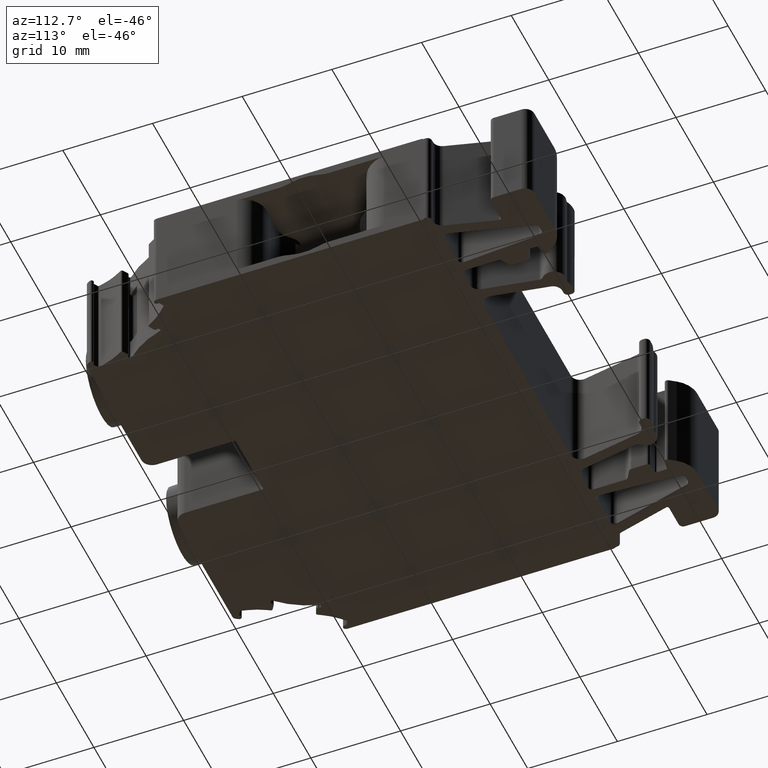
[diagram: clean part render]
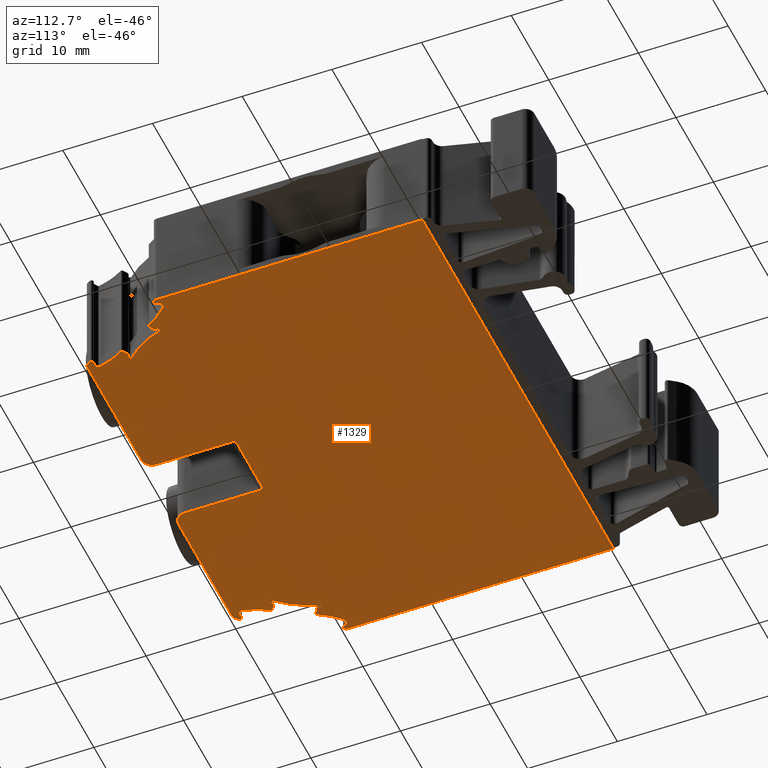
[diagram: same view with one face highlighted and labeled with its STEP entity id]
A machine part, auxiliary view. The second image highlights one B-rep face of the part: STEP entity #1329.
In plain terms, the highlighted planar face has unit normal (0, 0, -1).
Its self-contained STEP definition (entity closure, byte-faithful):
#55 = AXIS2_PLACEMENT_3D ( 'NONE', #18175, #18181, #18191 ) ;
#1329 = ADVANCED_FACE ( 'NONE', ( #18173 ), #18170, .T. ) ;
#1828 = EDGE_CURVE ( 'NONE', #19957, #19994, #12314, .T. ) ;
#1842 = EDGE_CURVE ( 'NONE', #19981, #19991, #12286, .T. ) ;
#1844 = EDGE_CURVE ( 'NONE', #19979, #19990, #12323, .T. ) ;
#1891 = EDGE_CURVE ( 'NONE', #18195, #18171, #12383, .T. ) ;
#1894 = EDGE_CURVE ( 'NONE', #19980, #19997, #12397, .T. ) ;
#1901 = EDGE_CURVE ( 'NONE', #19973, #19985, #12365, .T. ) ;
#2486 = VECTOR ( 'NONE', #21318, 1000.000000000000000 ) ;
#2487 = VECTOR ( 'NONE', #21306, 1000.000000000000200 ) ;
#2488 = VECTOR ( 'NONE', #21299, 1000.000000000000000 ) ;
#2490 = VECTOR ( 'NONE', #21283, 1000.000000000000100 ) ;
#2494 = VECTOR ( 'NONE', #20183, 1000.000000000000200 ) ;
#2502 = VECTOR ( 'NONE', #13981, 1000.000000000000100 ) ;
#2509 = VECTOR ( 'NONE', #14027, 1000.000000000000000 ) ;
#2510 = VECTOR ( 'NONE', #14060, 999.9999999999998900 ) ;
#2513 = VECTOR ( 'NONE', #21110, 1000.000000000000000 ) ;
#2516 = VECTOR ( 'NONE', #21022, 1000.000000000000100 ) ;
#2517 = VECTOR ( 'NONE', #21086, 1000.000000000000000 ) ;
#2518 = VECTOR ( 'NONE', #21162, 1000.000000000000000 ) ;
#2519 = VECTOR ( 'NONE', #21123, 1000.000000000000100 ) ;
#2520 = VECTOR ( 'NONE', #21153, 1000.000000000000100 ) ;
#2521 = VECTOR ( 'NONE', #21132, 1000.000000000000100 ) ;
#2524 = VECTOR ( 'NONE', #21134, 1000.000000000000200 ) ;
#2527 = VECTOR ( 'NONE', #14048, 1000.000000000000100 ) ;
#2536 = VECTOR ( 'NONE', #14052, 1000.000000000000000 ) ;
#2537 = VECTOR ( 'NONE', #21078, 1000.000000000000000 ) ;
#2540 = VECTOR ( 'NONE', #13954, 1000.000000000000100 ) ;
#2542 = VECTOR ( 'NONE', #21166, 1000.000000000000000 ) ;
#2543 = VECTOR ( 'NONE', #20173, 1000.000000000000100 ) ;
#2544 = VECTOR ( 'NONE', #21170, 1000.000000000000100 ) ;
#2547 = VECTOR ( 'NONE', #21028, 999.9999999999998900 ) ;
#2551 = VECTOR ( 'NONE', #21163, 1000.000000000000100 ) ;
#2553 = VECTOR ( 'NONE', #21108, 1000.000000000000000 ) ;
#2554 = VECTOR ( 'NONE', #21261, 1000.000000000000000 ) ;
#2555 = VECTOR ( 'NONE', #21229, 1000.000000000000100 ) ;
#2556 = VECTOR ( 'NONE', #21194, 1000.000000000000000 ) ;
#2559 = VECTOR ( 'NONE', #21246, 1000.000000000000000 ) ;
#2560 = VECTOR ( 'NONE', #21185, 1000.000000000000100 ) ;
#2562 = VECTOR ( 'NONE', #21253, 1000.000000000000000 ) ;
#2564 = VECTOR ( 'NONE', #21252, 1000.000000000000100 ) ;
#2567 = VECTOR ( 'NONE', #21228, 1000.000000000000000 ) ;
#2568 = VECTOR ( 'NONE', #21316, 999.9999999999998900 ) ;
#4667 = CARTESIAN_POINT ( 'NONE',  ( -131.3739195237552600, 208.9056863072011900, -148.5307464663934200 ) ) ;
#5323 = CARTESIAN_POINT ( 'NONE',  ( -85.58102543636773900, 210.5087812419557700, -148.5307464663930300 ) ) ;
#6063 = CARTESIAN_POINT ( 'NONE',  ( -84.83426895416876300, 209.8530903849165000, -148.5307464663930000 ) ) ;
#6081 = CARTESIAN_POINT ( 'NONE',  ( -84.96686527231413800, 210.0804633842424500, -148.5307464663930000 ) ) ;
#6086 = CARTESIAN_POINT ( 'NONE',  ( -84.96686995616308000, 210.0259219398535900, -148.5307464663930000 ) ) ;
#6099 = CARTESIAN_POINT ( 'NONE',  ( -84.94841509415314800, 209.9715423657409300, -148.5307464663930000 ) ) ;
#6100 = CARTESIAN_POINT ( 'NONE',  ( -84.88201509591525000, 209.8849969040122700, -148.5307464663930000 ) ) ;
#6109 = CARTESIAN_POINT ( 'NONE',  ( -88.33027163427610200, 208.8268597087528300, -148.5307464663931400 ) ) ;
#6116 = CARTESIAN_POINT ( 'NONE',  ( -89.89974014020674500, 203.9033763753044200, -148.5307464663934200 ) ) ;
#6119 = CARTESIAN_POINT ( 'NONE',  ( -89.87294683669384200, 203.9684667314091900, -148.5307464663934200 ) ) ;
#6121 = CARTESIAN_POINT ( 'NONE',  ( -84.72890411045446500, 209.8248534158713300, -148.5307464663930000 ) ) ;
#6122 = CARTESIAN_POINT ( 'NONE',  ( -84.57082100105449700, 209.8703500482411400, -148.5307464663930000 ) ) ;
#6123 = CARTESIAN_POINT ( 'NONE',  ( -89.87283908274000100, 204.0033730920073400, -148.5307464663934000 ) ) ;
#6125 = CARTESIAN_POINT ( 'NONE',  ( -84.52764578735795500, 209.9082132353064500, -148.5307464663930000 ) ) ;
#6126 = CARTESIAN_POINT ( 'NONE',  ( -88.30524017445259200, 208.7835606243085600, -148.5307464663931400 ) ) ;
#6128 = CARTESIAN_POINT ( 'NONE',  ( -89.88228789012620700, 203.9336050025512200, -148.5307464663934200 ) ) ;
#6133 = CARTESIAN_POINT ( 'NONE',  ( -84.50037532004728300, 209.9554476590946900, -148.5307464663930000 ) ) ;
#6140 = CARTESIAN_POINT ( 'NONE',  ( -84.67160117690517000, 209.8286075894334900, -148.5307464663930000 ) ) ;
#6141 = CARTESIAN_POINT ( 'NONE',  ( -88.37951773306406300, 208.8565194668187200, -148.5307464663930800 ) ) ;
#6142 = CARTESIAN_POINT ( 'NONE',  ( -88.30447241467793200, 208.7266215999714200, -148.5307464663931100 ) ) ;
#8343 = VERTEX_POINT ( 'NONE', #9920 ) ;
#8345 = VERTEX_POINT ( 'NONE', #9933 ) ;
#8348 = VERTEX_POINT ( 'NONE', #9912 ) ;
#8350 = VERTEX_POINT ( 'NONE', #9921 ) ;
#8355 = VERTEX_POINT ( 'NONE', #9929 ) ;
#8358 = VERTEX_POINT ( 'NONE', #9931 ) ;
#8362 = VERTEX_POINT ( 'NONE', #9894 ) ;
#8364 = VERTEX_POINT ( 'NONE', #9917 ) ;
#8368 = VERTEX_POINT ( 'NONE', #9926 ) ;
#8369 = VERTEX_POINT ( 'NONE', #9924 ) ;
#8371 = VERTEX_POINT ( 'NONE', #9906 ) ;
#8375 = VERTEX_POINT ( 'NONE', #9896 ) ;
#8377 = VERTEX_POINT ( 'NONE', #9898 ) ;
#8382 = VERTEX_POINT ( 'NONE', #9925 ) ;
#8384 = VERTEX_POINT ( 'NONE', #9879 ) ;
#8386 = VERTEX_POINT ( 'NONE', #9932 ) ;
#8401 = VERTEX_POINT ( 'NONE', #9939 ) ;
#8405 = VERTEX_POINT ( 'NONE', #9909 ) ;
#8407 = VERTEX_POINT ( 'NONE', #9910 ) ;
#8410 = VERTEX_POINT ( 'NONE', #9918 ) ;
#8412 = VERTEX_POINT ( 'NONE', #9884 ) ;
#8414 = VERTEX_POINT ( 'NONE', #9919 ) ;
#8422 = VERTEX_POINT ( 'NONE', #9913 ) ;
#8424 = VERTEX_POINT ( 'NONE', #9885 ) ;
#8428 = VERTEX_POINT ( 'NONE', #9886 ) ;
#8429 = VERTEX_POINT ( 'NONE', #9887 ) ;
#8433 = VERTEX_POINT ( 'NONE', #9889 ) ;
#8439 = VERTEX_POINT ( 'NONE', #9987 ) ;
#8441 = VERTEX_POINT ( 'NONE', #9960 ) ;
#8443 = VERTEX_POINT ( 'NONE', #9972 ) ;
#8445 = VERTEX_POINT ( 'NONE', #9958 ) ;
#8450 = VERTEX_POINT ( 'NONE', #9952 ) ;
#8452 = VERTEX_POINT ( 'NONE', #9964 ) ;
#8454 = VERTEX_POINT ( 'NONE', #9984 ) ;
#8456 = VERTEX_POINT ( 'NONE', #9946 ) ;
#8470 = VERTEX_POINT ( 'NONE', #9989 ) ;
#8471 = VERTEX_POINT ( 'NONE', #9944 ) ;
#8474 = VERTEX_POINT ( 'NONE', #9945 ) ;
#8480 = VERTEX_POINT ( 'NONE', #9957 ) ;
#8484 = VERTEX_POINT ( 'NONE', #9976 ) ;
#8485 = VERTEX_POINT ( 'NONE', #9988 ) ;
#8494 = VERTEX_POINT ( 'NONE', #9961 ) ;
#8508 = VERTEX_POINT ( 'NONE', #9967 ) ;
#8515 = VERTEX_POINT ( 'NONE', #9969 ) ;
#8547 = VERTEX_POINT ( 'NONE', #4667 ) ;
#9051 = ORIENTED_EDGE ( 'NONE', *, *, #15549, .F. ) ;
#9053 = ORIENTED_EDGE ( 'NONE', *, *, #15528, .F. ) ;
#9061 = ORIENTED_EDGE ( 'NONE', *, *, #15612, .T. ) ;
#9064 = ORIENTED_EDGE ( 'NONE', *, *, #15582, .T. ) ;
#9068 = ORIENTED_EDGE ( 'NONE', *, *, #15558, .T. ) ;
#9071 = ORIENTED_EDGE ( 'NONE', *, *, #15563, .T. ) ;
#9078 = ORIENTED_EDGE ( 'NONE', *, *, #15585, .T. ) ;
#9084 = ORIENTED_EDGE ( 'NONE', *, *, #15589, .T. ) ;
#9085 = ORIENTED_EDGE ( 'NONE', *, *, #15572, .T. ) ;
#9086 = ORIENTED_EDGE ( 'NONE', *, *, #15570, .F. ) ;
#9089 = ORIENTED_EDGE ( 'NONE', *, *, #15553, .F. ) ;
#9090 = ORIENTED_EDGE ( 'NONE', *, *, #15527, .F. ) ;
#9096 = ORIENTED_EDGE ( 'NONE', *, *, #15573, .T. ) ;
#9098 = ORIENTED_EDGE ( 'NONE', *, *, #15526, .T. ) ;
#9123 = ORIENTED_EDGE ( 'NONE', *, *, #15613, .F. ) ;
#9128 = ORIENTED_EDGE ( 'NONE', *, *, #15575, .T. ) ;
#9130 = ORIENTED_EDGE ( 'NONE', *, *, #1891, .F. ) ;
#9152 = ORIENTED_EDGE ( 'NONE', *, *, #15614, .T. ) ;
#9160 = ORIENTED_EDGE ( 'NONE', *, *, #15581, .T. ) ;
#9166 = ORIENTED_EDGE ( 'NONE', *, *, #15536, .T. ) ;
#9184 = ORIENTED_EDGE ( 'NONE', *, *, #15534, .F. ) ;
#9185 = ORIENTED_EDGE ( 'NONE', *, *, #15565, .T. ) ;
#9214 = ORIENTED_EDGE ( 'NONE', *, *, #15615, .F. ) ;
#9215 = ORIENTED_EDGE ( 'NONE', *, *, #15540, .T. ) ;
#9221 = ORIENTED_EDGE ( 'NONE', *, *, #1894, .T. ) ;
#9223 = ORIENTED_EDGE ( 'NONE', *, *, #15574, .T. ) ;
#9225 = ORIENTED_EDGE ( 'NONE', *, *, #15436, .F. ) ;
#9226 = ORIENTED_EDGE ( 'NONE', *, *, #15519, .T. ) ;
#9879 = CARTESIAN_POINT ( 'NONE',  ( -129.9388573412587400, 203.9033763753040800, -148.5307464663936800 ) ) ;
#9884 = CARTESIAN_POINT ( 'NONE',  ( -131.5139797361015600, 208.6516223185190300, -148.5307464663934200 ) ) ;
#9885 = CARTESIAN_POINT ( 'NONE',  ( -86.07796284113325700, 210.0117887336018300, -148.5307464663930300 ) ) ;
#9886 = CARTESIAN_POINT ( 'NONE',  ( -87.72142270267723100, 208.0587872819949400, -148.5307464663932000 ) ) ;
#9887 = CARTESIAN_POINT ( 'NONE',  ( -106.1694527465122300, 209.7313347132306400, -148.5307464663932000 ) ) ;
#9889 = CARTESIAN_POINT ( 'NONE',  ( -88.34395079259577700, 208.6181366699829600, -148.5307464663932000 ) ) ;
#9894 = CARTESIAN_POINT ( 'NONE',  ( -129.0582222506403400, 204.3981923652044700, -148.5307464663936200 ) ) ;
#9896 = CARTESIAN_POINT ( 'NONE',  ( -104.9694966623494100, 199.9316933592357100, -148.5307464663937400 ) ) ;
#9898 = CARTESIAN_POINT ( 'NONE',  ( -129.6954089010724000, 200.1816865475436200, -148.5307464663939600 ) ) ;
#9906 = CARTESIAN_POINT ( 'NONE',  ( -113.4691516756688800, 209.9313273939244200, -148.5307464663932500 ) ) ;
#9909 = CARTESIAN_POINT ( 'NONE',  ( -91.01823262789858400, 201.0941138107441800, -148.5307464663935100 ) ) ;
#9910 = CARTESIAN_POINT ( 'NONE',  ( -90.14318858039324300, 200.1816865475439900, -148.5307464663936500 ) ) ;
#9912 = CARTESIAN_POINT ( 'NONE',  ( -90.48049900044584600, 204.5001593333040500, -148.5307464663934200 ) ) ;
#9913 = CARTESIAN_POINT ( 'NONE',  ( -134.2575720450981900, 210.5087812419554600, -148.5307464663933400 ) ) ;
#9917 = CARTESIAN_POINT ( 'NONE',  ( -106.1694527465121500, 201.1316494433984000, -148.5307464663936800 ) ) ;
#9918 = CARTESIAN_POINT ( 'NONE',  ( -113.6691447349533600, 209.7313347132310400, -148.5307464663934000 ) ) ;
#9919 = CARTESIAN_POINT ( 'NONE',  ( -129.2624106964289900, 199.9316933592355100, -148.5307464663939600 ) ) ;
#9920 = CARTESIAN_POINT ( 'NONE',  ( -129.0774317533359300, 204.4314708132500600, -148.5307464663936200 ) ) ;
#9921 = CARTESIAN_POINT ( 'NONE',  ( -131.4590797484014200, 208.8565194668185500, -148.5307464663934200 ) ) ;
#9924 = CARTESIAN_POINT ( 'NONE',  ( -90.57618678503614300, 199.9316933592360200, -148.5307464663936800 ) ) ;
#9925 = CARTESIAN_POINT ( 'NONE',  ( -90.51395356314768000, 200.6745809334923100, -148.5307464663936200 ) ) ;
#9926 = CARTESIAN_POINT ( 'NONE',  ( -131.4946466888698900, 208.6181366699829600, -148.5307464663934200 ) ) ;
#9929 = CARTESIAN_POINT ( 'NONE',  ( -132.5687895286088500, 208.4585456916629800, -148.5307464663934200 ) ) ;
#9931 = CARTESIAN_POINT ( 'NONE',  ( -132.3827229372542100, 208.1362045033641300, -148.5307464663934500 ) ) ;
#9932 = CARTESIAN_POINT ( 'NONE',  ( -114.8691008191160000, 199.9316933592353700, -148.5307464663938800 ) ) ;
#9933 = CARTESIAN_POINT ( 'NONE',  ( -129.3580984810194800, 204.5001593333040300, -148.5307464663936200 ) ) ;
#9939 = CARTESIAN_POINT ( 'NONE',  ( -132.1171747787881300, 208.0587872819947400, -148.5307464663934200 ) ) ;
#9944 = CARTESIAN_POINT ( 'NONE',  ( -131.1547364254568900, 208.8171282028861200, -148.5307464663934200 ) ) ;
#9945 = CARTESIAN_POINT ( 'NONE',  ( -129.3246439183176600, 200.6745809334917400, -148.5307464663939600 ) ) ;
#9946 = CARTESIAN_POINT ( 'NONE',  ( -128.8533197389802200, 204.3432792385578400, -148.5307464663936200 ) ) ;
#9952 = CARTESIAN_POINT ( 'NONE',  ( -90.94834562919186300, 200.9253911079698600, -148.5307464663936200 ) ) ;
#9957 = CARTESIAN_POINT ( 'NONE',  ( -128.8902495631465700, 200.9253924296513400, -148.5307464663939400 ) ) ;
#9958 = CARTESIAN_POINT ( 'NONE',  ( -91.02334371514005800, 201.0552916033017800, -148.5307464663936200 ) ) ;
#9960 = CARTESIAN_POINT ( 'NONE',  ( -85.39996824090842200, 210.5326170579960500, -148.5307464663930000 ) ) ;
#9961 = CARTESIAN_POINT ( 'NONE',  ( -90.33893438588263800, 200.7756526448059200, -148.5307464663936200 ) ) ;
#9964 = CARTESIAN_POINT ( 'NONE',  ( -129.0008001513328100, 201.7674018895038400, -148.5307464663937900 ) ) ;
#9967 = CARTESIAN_POINT ( 'NONE',  ( -133.7606346403325100, 210.0117887336012900, -148.5307464663933400 ) ) ;
#9969 = CARTESIAN_POINT ( 'NONE',  ( -129.8411802047482100, 200.4341729994803500, -148.5307464663939600 ) ) ;
#9972 = CARTESIAN_POINT ( 'NONE',  ( -129.4996630955827200, 200.7756526448051200, -148.5307464663939400 ) ) ;
#9976 = CARTESIAN_POINT ( 'NONE',  ( -106.3694454272061900, 209.9313273939250200, -148.5307464663932000 ) ) ;
#9984 = CARTESIAN_POINT ( 'NONE',  ( -113.6691447349532100, 201.1316494433982900, -148.5307464663938200 ) ) ;
#9987 = CARTESIAN_POINT ( 'NONE',  ( -90.08862316523516300, 203.5762165804079600, -148.5307464663934200 ) ) ;
#9988 = CARTESIAN_POINT ( 'NONE',  ( -129.7499743162301800, 203.5762165804074200, -148.5307464663936800 ) ) ;
#9989 = CARTESIAN_POINT ( 'NONE',  ( -128.7681575747537900, 204.3924474152684100, -148.5307464663936200 ) ) ;
#11319 = ORIENTED_EDGE ( 'NONE', *, *, #15644, .T. ) ;
#11320 = ORIENTED_EDGE ( 'NONE', *, *, #15623, .F. ) ;
#11328 = ORIENTED_EDGE ( 'NONE', *, *, #15577, .T. ) ;
#11335 = ORIENTED_EDGE ( 'NONE', *, *, #15600, .F. ) ;
#11336 = ORIENTED_EDGE ( 'NONE', *, *, #15596, .T. ) ;
#11337 = ORIENTED_EDGE ( 'NONE', *, *, #15656, .T. ) ;
#11338 = ORIENTED_EDGE ( 'NONE', *, *, #15578, .F. ) ;
#11339 = ORIENTED_EDGE ( 'NONE', *, *, #15655, .T. ) ;
#11340 = ORIENTED_EDGE ( 'NONE', *, *, #15517, .F. ) ;
#11341 = ORIENTED_EDGE ( 'NONE', *, *, #15637, .T. ) ;
#11342 = ORIENTED_EDGE ( 'NONE', *, *, #15566, .T. ) ;
#11343 = ORIENTED_EDGE ( 'NONE', *, *, #15603, .F. ) ;
#11345 = ORIENTED_EDGE ( 'NONE', *, *, #15654, .T. ) ;
#11346 = ORIENTED_EDGE ( 'NONE', *, *, #15629, .T. ) ;
#11347 = ORIENTED_EDGE ( 'NONE', *, *, #15607, .T. ) ;
#11348 = ORIENTED_EDGE ( 'NONE', *, *, #15651, .F. ) ;
#11349 = ORIENTED_EDGE ( 'NONE', *, *, #15580, .T. ) ;
#11350 = ORIENTED_EDGE ( 'NONE', *, *, #15579, .T. ) ;
#11351 = ORIENTED_EDGE ( 'NONE', *, *, #15664, .T. ) ;
#11352 = ORIENTED_EDGE ( 'NONE', *, *, #15669, .T. ) ;
#11353 = ORIENTED_EDGE ( 'NONE', *, *, #15630, .F. ) ;
#11354 = ORIENTED_EDGE ( 'NONE', *, *, #15674, .T. ) ;
#11355 = ORIENTED_EDGE ( 'NONE', *, *, #15680, .F. ) ;
#11356 = ORIENTED_EDGE ( 'NONE', *, *, #15631, .T. ) ;
#11357 = ORIENTED_EDGE ( 'NONE', *, *, #1844, .T. ) ;
#11358 = ORIENTED_EDGE ( 'NONE', *, *, #15562, .T. ) ;
#11359 = ORIENTED_EDGE ( 'NONE', *, *, #15599, .F. ) ;
#11360 = ORIENTED_EDGE ( 'NONE', *, *, #15547, .T. ) ;
#11361 = ORIENTED_EDGE ( 'NONE', *, *, #15663, .T. ) ;
#11362 = ORIENTED_EDGE ( 'NONE', *, *, #15586, .T. ) ;
#11363 = ORIENTED_EDGE ( 'NONE', *, *, #15567, .T. ) ;
#11364 = ORIENTED_EDGE ( 'NONE', *, *, #15604, .T. ) ;
#11365 = ORIENTED_EDGE ( 'NONE', *, *, #1842, .F. ) ;
#11366 = ORIENTED_EDGE ( 'NONE', *, *, #1828, .T. ) ;
#11367 = ORIENTED_EDGE ( 'NONE', *, *, #15650, .T. ) ;
#11368 = ORIENTED_EDGE ( 'NONE', *, *, #15568, .T. ) ;
#11369 = ORIENTED_EDGE ( 'NONE', *, *, #15551, .T. ) ;
#11370 = ORIENTED_EDGE ( 'NONE', *, *, #15597, .F. ) ;
#11372 = ORIENTED_EDGE ( 'NONE', *, *, #15542, .T. ) ;
#11375 = ORIENTED_EDGE ( 'NONE', *, *, #15569, .T. ) ;
#11376 = ORIENTED_EDGE ( 'NONE', *, *, #1901, .F. ) ;
#11377 = ORIENTED_EDGE ( 'NONE', *, *, #15605, .T. ) ;
#11378 = ORIENTED_EDGE ( 'NONE', *, *, #15591, .T. ) ;
#11382 = ORIENTED_EDGE ( 'NONE', *, *, #15561, .T. ) ;
#11383 = ORIENTED_EDGE ( 'NONE', *, *, #15620, .T. ) ;
#11386 = ORIENTED_EDGE ( 'NONE', *, *, #15576, .T. ) ;
#11387 = ORIENTED_EDGE ( 'NONE', *, *, #15608, .T. ) ;
#11388 = ORIENTED_EDGE ( 'NONE', *, *, #15611, .T. ) ;
#11389 = ORIENTED_EDGE ( 'NONE', *, *, #15618, .T. ) ;
#11390 = ORIENTED_EDGE ( 'NONE', *, *, #15626, .T. ) ;
#11391 = ORIENTED_EDGE ( 'NONE', *, *, #15530, .T. ) ;
#11392 = ORIENTED_EDGE ( 'NONE', *, *, #15532, .F. ) ;
#11393 = ORIENTED_EDGE ( 'NONE', *, *, #15571, .T. ) ;
#11394 = ORIENTED_EDGE ( 'NONE', *, *, #15602, .T. ) ;
#11395 = ORIENTED_EDGE ( 'NONE', *, *, #15584, .T. ) ;
#11396 = ORIENTED_EDGE ( 'NONE', *, *, #15552, .T. ) ;
#11397 = ORIENTED_EDGE ( 'NONE', *, *, #15592, .F. ) ;
#11398 = ORIENTED_EDGE ( 'NONE', *, *, #15609, .T. ) ;
#12286 = B_SPLINE_CURVE_WITH_KNOTS ( 'NONE', 3,
 ( #17604, #17594, #17652, #17645 ),
 .UNSPECIFIED., .F., .F.,
 ( 4, 4 ),
 ( 0.0000000000000000000, 1.000000000000000000 ),
 .UNSPECIFIED. ) ;
#12314 = B_SPLINE_CURVE_WITH_KNOTS ( 'NONE', 3,
 ( #17512, #17545, #17522, #17560 ),
 .UNSPECIFIED., .F., .F.,
 ( 4, 4 ),
 ( 0.0000000000000000000, 1.000000000000000000 ),
 .UNSPECIFIED. ) ;
#12323 = B_SPLINE_CURVE_WITH_KNOTS ( 'NONE', 3,
 ( #17651, #17616, #17620, #17653 ),
 .UNSPECIFIED., .F., .F.,
 ( 4, 4 ),
 ( 0.0000000000000000000, 1.000000000000000000 ),
 .UNSPECIFIED. ) ;
#12365 = B_SPLINE_CURVE_WITH_KNOTS ( 'NONE', 3,
 ( #6116, #6128, #6119, #6123 ),
 .UNSPECIFIED., .F., .F.,
 ( 4, 4 ),
 ( 0.0000000000000000000, 1.000000000000000000 ),
 .UNSPECIFIED. ) ;
#12383 = B_SPLINE_CURVE_WITH_KNOTS ( 'NONE', 3,
 ( #6081, #6086, #6099, #6100, #6063, #6121, #6140, #6122, #6125, #6133 ),
 .UNSPECIFIED., .F., .F.,
 ( 4, 2, 2, 2, 4 ),
 ( 0.0000000000000000000, 0.2500000000000000000, 0.5000000000000000000, 0.7500000000000000000, 1.000000000000000000 ),
 .UNSPECIFIED. ) ;
#12397 = B_SPLINE_CURVE_WITH_KNOTS ( 'NONE', 3,
 ( #6142, #6126, #6109, #6141 ),
 .UNSPECIFIED., .F., .F.,
 ( 4, 4 ),
 ( 0.0000000000000000000, 1.000000000000000000 ),
 .UNSPECIFIED. ) ;
#12923 = B_SPLINE_CURVE_WITH_KNOTS ( 'NONE', 3,
 ( #14724, #14725, #14733, #14738, #14741, #14742 ),
 .UNSPECIFIED., .F., .F.,
 ( 4, 2, 4 ),
 ( 0.0000000000000000000, 0.5000000000000000000, 1.000000000000000000 ),
 .UNSPECIFIED. ) ;
#12940 = B_SPLINE_CURVE_WITH_KNOTS ( 'NONE', 3,
 ( #14409, #13858, #13964, #13914, #14051, #19275 ),
 .UNSPECIFIED., .F., .F.,
 ( 4, 2, 4 ),
 ( 0.0000000000000000000, 0.5000000000000000000, 1.000000000000000000 ),
 .UNSPECIFIED. ) ;
#12941 = B_SPLINE_CURVE_WITH_KNOTS ( 'NONE', 3,
 ( #13975, #13972, #13985, #13976 ),
 .UNSPECIFIED., .F., .F.,
 ( 4, 4 ),
 ( 0.0000000000000000000, 1.000000000000000000 ),
 .UNSPECIFIED. ) ;
#12942 = B_SPLINE_CURVE_WITH_KNOTS ( 'NONE', 3,
 ( #13923, #13933, #13955, #13919 ),
 .UNSPECIFIED., .F., .F.,
 ( 4, 4 ),
 ( 0.0000000000000000000, 1.000000000000000000 ),
 .UNSPECIFIED. ) ;
#12947 = B_SPLINE_CURVE_WITH_KNOTS ( 'NONE', 3,
 ( #21046, #21019, #21020, #21063, #21035, #21064, #21041, #21055, #21043, #21049, #21026, #21025, #21051, #21042, #21065, #21048, #21021, #21037 ),
 .UNSPECIFIED., .F., .F.,
 ( 4, 1, 1, 2, 2, 2, 1, 1, 2, 2, 4 ),
 ( 0.0000000000000000000, 0.1249999999998846200, 0.1874999999998290800, 0.2187499999998266900, 0.2499999999998243100, 0.4999999999998752100, 0.6249999999999156200, 0.6874999999999240600, 0.7187499999999282800, 0.7499999999999325000, 1.000000000000000000 ),
 .UNSPECIFIED. ) ;
#12948 = B_SPLINE_CURVE_WITH_KNOTS ( 'NONE', 3,
 ( #21027, #21034, #21047, #21095 ),
 .UNSPECIFIED., .F., .F.,
 ( 4, 4 ),
 ( 0.0000000000000000000, 1.000000000000000000 ),
 .UNSPECIFIED. ) ;
#12951 = B_SPLINE_CURVE_WITH_KNOTS ( 'NONE', 3,
 ( #13986, #14002, #13991, #13994, #13969, #13970, #14011, #13988, #14007, #13973 ),
 .UNSPECIFIED., .F., .F.,
 ( 4, 2, 2, 2, 4 ),
 ( 0.0000000000000000000, 0.2500000000000000000, 0.5000000000000000000, 0.7500000000000000000, 1.000000000000000000 ),
 .UNSPECIFIED. ) ;
#12953 = B_SPLINE_CURVE_WITH_KNOTS ( 'NONE', 3,
 ( #14015, #13998, #14016, #13990 ),
 .UNSPECIFIED., .F., .F.,
 ( 4, 4 ),
 ( 0.0000000000000000000, 1.000000000000000000 ),
 .UNSPECIFIED. ) ;
#12954 = B_SPLINE_CURVE_WITH_KNOTS ( 'NONE', 3,
 ( #13917, #13920, #13922, #13925, #13918, #13944 ),
 .UNSPECIFIED., .F., .F.,
 ( 4, 2, 4 ),
 ( 0.0000000000000000000, 0.5000000000000000000, 1.000000000000000000 ),
 .UNSPECIFIED. ) ;
#12960 = B_SPLINE_CURVE_WITH_KNOTS ( 'NONE', 3,
 ( #14000, #14009, #14001, #13968 ),
 .UNSPECIFIED., .F., .F.,
 ( 4, 4 ),
 ( 0.0000000000000000000, 1.000000000000000000 ),
 .UNSPECIFIED. ) ;
#12963 = B_SPLINE_CURVE_WITH_KNOTS ( 'NONE', 3,
 ( #21029, #21113, #21105, #21071 ),
 .UNSPECIFIED., .F., .F.,
 ( 4, 4 ),
 ( 0.0000000000000000000, 1.000000000000000000 ),
 .UNSPECIFIED. ) ;
#12968 = B_SPLINE_CURVE_WITH_KNOTS ( 'NONE', 3,
 ( #14038, #14032, #14030, #14044, #14028, #14041 ),
 .UNSPECIFIED., .F., .F.,
 ( 4, 2, 4 ),
 ( 0.0000000000000000000, 0.5000000000000000000, 1.000000000000000000 ),
 .UNSPECIFIED. ) ;
#12972 = B_SPLINE_CURVE_WITH_KNOTS ( 'NONE', 3,
 ( #21075, #21070, #21102, #21096, #21097, #21076, #21112, #21083, #21121, #21119, #21081, #21114, #21098, #21120, #21107, #21073, #21117, #21072 ),
 .UNSPECIFIED., .F., .F.,
 ( 4, 1, 1, 2, 2, 2, 1, 1, 2, 2, 4 ),
 ( 0.0000000000000000000, 0.1250000000000250100, 0.1875000000000217900, 0.2187500000000202100, 0.2500000000000186000, 0.5000000000001035800, 0.6250000000001459900, 0.6875000000001614300, 0.7187500000001690900, 0.7500000000001768600, 1.000000000000000000 ),
 .UNSPECIFIED. ) ;
#12983 = B_SPLINE_CURVE_WITH_KNOTS ( 'NONE', 3,
 ( #13966, #13965, #13971, #13999 ),
 .UNSPECIFIED., .F., .F.,
 ( 4, 4 ),
 ( 0.0000000000000000000, 1.000000000000000000 ),
 .UNSPECIFIED. ) ;
#12986 = B_SPLINE_CURVE_WITH_KNOTS ( 'NONE', 3,
 ( #14039, #14049, #14616, #14612, #14702, #14707 ),
 .UNSPECIFIED., .F., .F.,
 ( 4, 2, 4 ),
 ( 0.0000000000000000000, 0.5000000000000000000, 1.000000000000000000 ),
 .UNSPECIFIED. ) ;
#12989 = B_SPLINE_CURVE_WITH_KNOTS ( 'NONE', 3,
 ( #20189, #20202, #20203, #20211 ),
 .UNSPECIFIED., .F., .F.,
 ( 4, 4 ),
 ( 0.0000000000000000000, 1.000000000000000000 ),
 .UNSPECIFIED. ) ;
#12990 = B_SPLINE_CURVE_WITH_KNOTS ( 'NONE', 3,
 ( #21171, #21155, #21128, #21130 ),
 .UNSPECIFIED., .F., .F.,
 ( 4, 4 ),
 ( 0.0000000000000000000, 1.000000000000000000 ),
 .UNSPECIFIED. ) ;
#12994 = B_SPLINE_CURVE_WITH_KNOTS ( 'NONE', 3,
 ( #21115, #21089, #21080, #21090 ),
 .UNSPECIFIED., .F., .F.,
 ( 4, 4 ),
 ( 0.0000000000000000000, 1.000000000000000000 ),
 .UNSPECIFIED. ) ;
#12998 = B_SPLINE_CURVE_WITH_KNOTS ( 'NONE', 3,
 ( #21137, #21161, #21142, #21158, #21146, #21159 ),
 .UNSPECIFIED., .F., .F.,
 ( 4, 2, 4 ),
 ( 0.0000000000000000000, 0.5000000000000000000, 1.000000000000000000 ),
 .UNSPECIFIED. ) ;
#12999 = B_SPLINE_CURVE_WITH_KNOTS ( 'NONE', 3,
 ( #21091, #21069, #21101, #21084 ),
 .UNSPECIFIED., .F., .F.,
 ( 4, 4 ),
 ( 0.0000000000000000000, 1.000000000000000000 ),
 .UNSPECIFIED. ) ;
#13000 = B_SPLINE_CURVE_WITH_KNOTS ( 'NONE', 3,
 ( #21221, #21183, #21216, #21197, #21220, #21209 ),
 .UNSPECIFIED., .F., .F.,
 ( 4, 2, 4 ),
 ( 0.0000000000000000000, 0.5000000000000000000, 1.000000000000000000 ),
 .UNSPECIFIED. ) ;
#13001 = B_SPLINE_CURVE_WITH_KNOTS ( 'NONE', 3,
 ( #21092, #21094, #21127, #21169 ),
 .UNSPECIFIED., .F., .F.,
 ( 4, 4 ),
 ( 0.0000000000000000000, 1.000000000000000000 ),
 .UNSPECIFIED. ) ;
#13002 = B_SPLINE_CURVE_WITH_KNOTS ( 'NONE', 3,
 ( #21206, #21201, #21204, #21175, #21180, #21217 ),
 .UNSPECIFIED., .F., .F.,
 ( 4, 2, 4 ),
 ( 0.0000000000000000000, 0.5000000000000000000, 1.000000000000000000 ),
 .UNSPECIFIED. ) ;
#13003 = B_SPLINE_CURVE_WITH_KNOTS ( 'NONE', 3,
 ( #21207, #21172, #21181, #21256, #21226, #21266 ),
 .UNSPECIFIED., .F., .F.,
 ( 4, 2, 4 ),
 ( 0.0000000000000000000, 0.5000000000000000000, 1.000000000000000000 ),
 .UNSPECIFIED. ) ;
#13004 = B_SPLINE_CURVE_WITH_KNOTS ( 'NONE', 3,
 ( #21270, #21224, #21268, #21243 ),
 .UNSPECIFIED., .F., .F.,
 ( 4, 4 ),
 ( 0.0000000000000000000, 1.000000000000000000 ),
 .UNSPECIFIED. ) ;
#13006 = B_SPLINE_CURVE_WITH_KNOTS ( 'NONE', 3,
 ( #21301, #21312, #21294, #21282, #21285, #21290 ),
 .UNSPECIFIED., .F., .F.,
 ( 4, 2, 4 ),
 ( 0.0000000000000000000, 0.5000000000000000000, 1.000000000000000000 ),
 .UNSPECIFIED. ) ;
#13007 = B_SPLINE_CURVE_WITH_KNOTS ( 'NONE', 3,
 ( #20193, #20198, #20174, #20171 ),
 .UNSPECIFIED., .F., .F.,
 ( 4, 4 ),
 ( 0.0000000000000000000, 1.000000000000000000 ),
 .UNSPECIFIED. ) ;
#13009 = B_SPLINE_CURVE_WITH_KNOTS ( 'NONE', 3,
 ( #21126, #21160, #21139, #21145, #21136, #21141 ),
 .UNSPECIFIED., .F., .F.,
 ( 4, 2, 4 ),
 ( 0.0000000000000000000, 0.5000000000000000000, 1.000000000000000000 ),
 .UNSPECIFIED. ) ;
#13010 = B_SPLINE_CURVE_WITH_KNOTS ( 'NONE', 3,
 ( #21077, #21118, #21106, #21100 ),
 .UNSPECIFIED., .F., .F.,
 ( 4, 4 ),
 ( 0.0000000000000000000, 1.000000000000000000 ),
 .UNSPECIFIED. ) ;
#13011 = B_SPLINE_CURVE_WITH_KNOTS ( 'NONE', 3,
 ( #21187, #21211, #21191, #21219, #21192, #21195, #21222, #21188, #21190, #21223 ),
 .UNSPECIFIED., .F., .F.,
 ( 4, 2, 2, 2, 4 ),
 ( 0.0000000000000000000, 0.2500000000000000000, 0.5000000000000000000, 0.7500000000000000000, 1.000000000000000000 ),
 .UNSPECIFIED. ) ;
#13013 = B_SPLINE_CURVE_WITH_KNOTS ( 'NONE', 3,
 ( #21193, #21205, #21262, #21238, #21250, #21249, #21264, #21263, #21244, #21232 ),
 .UNSPECIFIED., .F., .F.,
 ( 4, 2, 2, 2, 4 ),
 ( 0.0000000000000000000, 0.2500000000000000000, 0.5000000000000000000, 0.7500000000000000000, 1.000000000000000000 ),
 .UNSPECIFIED. ) ;
#13014 = B_SPLINE_CURVE_WITH_KNOTS ( 'NONE', 3,
 ( #21231, #21257, #21239, #21227, #21240, #21241 ),
 .UNSPECIFIED., .F., .F.,
 ( 4, 2, 4 ),
 ( 0.0000000000000000000, 0.5000000000000000000, 1.000000000000000000 ),
 .UNSPECIFIED. ) ;
#13015 = B_SPLINE_CURVE_WITH_KNOTS ( 'NONE', 3,
 ( #21315, #21311, #21307, #21295 ),
 .UNSPECIFIED., .F., .F.,
 ( 4, 4 ),
 ( 0.0000000000000000000, 1.000000000000000000 ),
 .UNSPECIFIED. ) ;
#13018 = B_SPLINE_CURVE_WITH_KNOTS ( 'NONE', 3,
 ( #20218, #20206, #20179, #20190 ),
 .UNSPECIFIED., .F., .F.,
 ( 4, 4 ),
 ( 0.0000000000000000000, 1.000000000000000000 ),
 .UNSPECIFIED. ) ;
#13032 = B_SPLINE_CURVE_WITH_KNOTS ( 'NONE', 3,
 ( #20349, #20361, #20329, #20369, #20328, #20327 ),
 .UNSPECIFIED., .F., .F.,
 ( 4, 2, 4 ),
 ( 0.0000000000000000000, 0.5000000000000000000, 1.000000000000000000 ),
 .UNSPECIFIED. ) ;
#13042 = B_SPLINE_CURVE_WITH_KNOTS ( 'NONE', 3,
 ( #20238, #20247, #20293, #20287 ),
 .UNSPECIFIED., .F., .F.,
 ( 4, 4 ),
 ( 0.0000000000000000000, 1.000000000000000000 ),
 .UNSPECIFIED. ) ;
#13053 = B_SPLINE_CURVE_WITH_KNOTS ( 'NONE', 3,
 ( #20317, #20279, #20326, #20330 ),
 .UNSPECIFIED., .F., .F.,
 ( 4, 4 ),
 ( 0.0000000000000000000, 1.000000000000000000 ),
 .UNSPECIFIED. ) ;
#13064 = B_SPLINE_CURVE_WITH_KNOTS ( 'NONE', 3,
 ( #20266, #20267, #20221, #20273, #20310, #20288 ),
 .UNSPECIFIED., .F., .F.,
 ( 4, 2, 4 ),
 ( 0.0000000000000000000, 0.5000000000000000000, 1.000000000000000000 ),
 .UNSPECIFIED. ) ;
#13067 = B_SPLINE_CURVE_WITH_KNOTS ( 'NONE', 3,
 ( #20259, #20220, #20253, #20258, #20260, #20261 ),
 .UNSPECIFIED., .F., .F.,
 ( 4, 2, 4 ),
 ( 0.0000000000000000000, 0.5000000000000000000, 1.000000000000000000 ),
 .UNSPECIFIED. ) ;
#13082 = B_SPLINE_CURVE_WITH_KNOTS ( 'NONE', 3,
 ( #20403, #20408, #20393, #20399, #20385, #20418 ),
 .UNSPECIFIED., .F., .F.,
 ( 4, 2, 4 ),
 ( 0.0000000000000000000, 0.5000000000000000000, 1.000000000000000000 ),
 .UNSPECIFIED. ) ;
#13858 = CARTESIAN_POINT ( 'NONE',  ( -87.67626831419094900, 208.0352831993484700, -148.5307464663931700 ) ) ;
#13914 = CARTESIAN_POINT ( 'NONE',  ( -87.52423596797955000, 208.0584339089064100, -148.5307464663932000 ) ) ;
#13917 = CARTESIAN_POINT ( 'NONE',  ( -90.48049900044584600, 204.5001593333040500, -148.5307464663934200 ) ) ;
#13918 = CARTESIAN_POINT ( 'NONE',  ( -90.73426179500232500, 204.4780790547524700, -148.5307464663934200 ) ) ;
#13919 = CARTESIAN_POINT ( 'NONE',  ( -87.26980795285679400, 208.4585456916632900, -148.5307464663930800 ) ) ;
#13920 = CARTESIAN_POINT ( 'NONE',  ( -90.52588627848508900, 204.5290755015460000, -148.5307464663934000 ) ) ;
#13922 = CARTESIAN_POINT ( 'NONE',  ( -90.58322701140350800, 204.5385421160114600, -148.5307464663934500 ) ) ;
#13923 = CARTESIAN_POINT ( 'NONE',  ( -86.07796284113325700, 210.0117887336018300, -148.5307464663930300 ) ) ;
#13925 = CARTESIAN_POINT ( 'NONE',  ( -90.68777343974534200, 204.5129561140688300, -148.5307464663934200 ) ) ;
#13928 = CARTESIAN_POINT ( 'NONE',  ( -134.4386292405572500, 210.5326170579953100, -148.5307464663932500 ) ) ;
#13933 = CARTESIAN_POINT ( 'NONE',  ( -86.54325483055323800, 209.5462271720276700, -148.5307464663930800 ) ) ;
#13944 = CARTESIAN_POINT ( 'NONE',  ( -90.76116572812952700, 204.4314708132506000, -148.5307464663934200 ) ) ;
#13954 = DIRECTION ( 'NONE',  ( -0.8660254037844228300, -0.5000000000000273100, 0.0000000000000000000 ) ) ;
#13955 = CARTESIAN_POINT ( 'NONE',  ( -86.94053653446106000, 209.0284794913814900, -148.5307464663931100 ) ) ;
#13958 = LINE ( 'NONE', #13928, #2540 ) ;
#13963 = LINE ( 'NONE', #14013, #2502 ) ;
#13964 = CARTESIAN_POINT ( 'NONE',  ( -87.62197774928550600, 208.0299385234963300, -148.5307464663932000 ) ) ;
#13965 = CARTESIAN_POINT ( 'NONE',  ( -88.37074495304587200, 208.4454184589125700, -148.5307464663931700 ) ) ;
#13966 = CARTESIAN_POINT ( 'NONE',  ( -88.37074495304590000, 208.5181399454539200, -148.5307464663931400 ) ) ;
#13968 = CARTESIAN_POINT ( 'NONE',  ( -91.07043960694778700, 204.3924472422008000, -148.5307464663934200 ) ) ;
#13969 = CARTESIAN_POINT ( 'NONE',  ( -135.1096933710108500, 209.8248534158709000, -148.5307464663934200 ) ) ;
#13970 = CARTESIAN_POINT ( 'NONE',  ( -135.0043285272964800, 209.8530903849160700, -148.5307464663934200 ) ) ;
#13971 = CARTESIAN_POINT ( 'NONE',  ( -88.32759884038863200, 208.3743183857661400, -148.5307464663931700 ) ) ;
#13972 = CARTESIAN_POINT ( 'NONE',  ( -89.87294683669384200, 204.0702721144920700, -148.5307464663934200 ) ) ;
#13973 = CARTESIAN_POINT ( 'NONE',  ( -134.8717322091514700, 210.0804633842419900, -148.5307464663934000 ) ) ;
#13975 = CARTESIAN_POINT ( 'NONE',  ( -89.87283908274000100, 204.0033730920073400, -148.5307464663934000 ) ) ;
#13976 = CARTESIAN_POINT ( 'NONE',  ( -89.96548013643951000, 204.1720415707380900, -148.5307464663934200 ) ) ;
#13981 = DIRECTION ( 'NONE',  ( 0.4999953249479893700, -0.8660281029101505300, 0.0000000000000000000 ) ) ;
#13985 = CARTESIAN_POINT ( 'NONE',  ( -89.90905755079593600, 204.1360948242141800, -148.5307464663934200 ) ) ;
#13986 = CARTESIAN_POINT ( 'NONE',  ( -135.3382221614182900, 209.9554476590939800, -148.5307464663934200 ) ) ;
#13988 = CARTESIAN_POINT ( 'NONE',  ( -134.8901823873121700, 209.9715423657405300, -148.5307464663934200 ) ) ;
#13990 = CARTESIAN_POINT ( 'NONE',  ( -91.14543711586057400, 204.5223464451829300, -148.5307464663934200 ) ) ;
#13991 = CARTESIAN_POINT ( 'NONE',  ( -135.2677764804108700, 209.8703500482406500, -148.5307464663934500 ) ) ;
#13994 = CARTESIAN_POINT ( 'NONE',  ( -135.1669963045600900, 209.8286075894329200, -148.5307464663934000 ) ) ;
#13998 = CARTESIAN_POINT ( 'NONE',  ( -91.13078671130188000, 204.5972338515061900, -148.5307464663934000 ) ) ;
#13999 = CARTESIAN_POINT ( 'NONE',  ( -88.26309303841573200, 208.3407413680811300, -148.5307464663932000 ) ) ;
#14000 = CARTESIAN_POINT ( 'NONE',  ( -91.14543711586057400, 204.5223464451829300, -148.5307464663934200 ) ) ;
#14001 = CARTESIAN_POINT ( 'NONE',  ( -91.11922950707111100, 204.4220233306813000, -148.5307464663934200 ) ) ;
#14002 = CARTESIAN_POINT ( 'NONE',  ( -135.3109516941073900, 209.9082132353059100, -148.5307464663934000 ) ) ;
#14007 = CARTESIAN_POINT ( 'NONE',  ( -134.8717275253022200, 210.0259219398532500, -148.5307464663934200 ) ) ;
#14009 = CARTESIAN_POINT ( 'NONE',  ( -91.14422867670882100, 204.4653230650084500, -148.5307464663934200 ) ) ;
#14011 = CARTESIAN_POINT ( 'NONE',  ( -134.9565823855500100, 209.8849969040118700, -148.5307464663934200 ) ) ;
#14013 = CARTESIAN_POINT ( 'NONE',  ( -129.6954089010689000, 200.1816865475375900, -148.5307464663934000 ) ) ;
#14015 = CARTESIAN_POINT ( 'NONE',  ( -91.10333550313679000, 204.6265456572297400, -148.5307464663934000 ) ) ;
#14016 = CARTESIAN_POINT ( 'NONE',  ( -91.14482058220981700, 204.5625007808238800, -148.5307464663934200 ) ) ;
#14019 = CARTESIAN_POINT ( 'NONE',  ( -89.89974014020674500, 203.9033763753043900, -148.5307464663934500 ) ) ;
#14026 = CARTESIAN_POINT ( 'NONE',  ( -90.14318858039520400, 200.1816865475408100, -148.5307464663930000 ) ) ;
#14027 = DIRECTION ( 'NONE',  ( 1.000000000000000000, -4.014471909915997900E-028, 6.982962677685862800E-015 ) ) ;
#14028 = CARTESIAN_POINT ( 'NONE',  ( -90.80228455782997800, 204.3616460656577100, -148.5307464663934200 ) ) ;
#14030 = CARTESIAN_POINT ( 'NONE',  ( -90.91026206810497000, 204.3182456868915200, -148.5307464663934500 ) ) ;
#14032 = CARTESIAN_POINT ( 'NONE',  ( -90.94887232983089100, 204.3230667362931000, -148.5307464663934000 ) ) ;
#14034 = LINE ( 'NONE', #14054, #2527 ) ;
#14036 = LINE ( 'NONE', #14026, #2536 ) ;
#14037 = LINE ( 'NONE', #14043, #2509 ) ;
#14038 = CARTESIAN_POINT ( 'NONE',  ( -90.98527774248519500, 204.3432792385578400, -148.5307464663934200 ) ) ;
#14039 = CARTESIAN_POINT ( 'NONE',  ( -106.1694527465122300, 209.7313347132306400, -148.5307464663932000 ) ) ;
#14041 = CARTESIAN_POINT ( 'NONE',  ( -90.78037523082538500, 204.3981923652048900, -148.5307464663934200 ) ) ;
#14043 = CARTESIAN_POINT ( 'NONE',  ( -90.57618678503614300, 239.8627813288410100, -148.5307464663913500 ) ) ;
#14044 = CARTESIAN_POINT ( 'NONE',  ( -90.83264379068674500, 204.3383474700855800, -148.5307464663934200 ) ) ;
#14048 = DIRECTION ( 'NONE',  ( -0.2588569260822118400, -0.9659156753150184300, 0.0000000000000000000 ) ) ;
#14049 = CARTESIAN_POINT ( 'NONE',  ( -106.1703477039710200, 209.7867803229552500, -148.5307464663932300 ) ) ;
#14051 = CARTESIAN_POINT ( 'NONE',  ( -87.48132343482377800, 208.0921169238528100, -148.5307464663932300 ) ) ;
#14052 = DIRECTION ( 'NONE',  ( 0.4999953249479769900, 0.8660281029101578600, 0.0000000000000000000 ) ) ;
#14054 = CARTESIAN_POINT ( 'NONE',  ( -90.83779733013243200, 201.7674018895047800, -148.5307464663934500 ) ) ;
#14060 = DIRECTION ( 'NONE',  ( -0.4999944993779431600, -0.8660285795467723700, 0.0000000000000000000 ) ) ;
#14063 = LINE ( 'NONE', #14019, #2510 ) ;
#14409 = CARTESIAN_POINT ( 'NONE',  ( -87.72142270267723100, 208.0587872819949400, -148.5307464663932000 ) ) ;
#14612 = CARTESIAN_POINT ( 'NONE',  ( -106.2655137949073800, 209.9108993507095700, -148.5307464663932000 ) ) ;
#14616 = CARTESIAN_POINT ( 'NONE',  ( -106.1905446980922400, 209.8346024371650700, -148.5307464663932300 ) ) ;
#14702 = CARTESIAN_POINT ( 'NONE',  ( -106.3126525218095300, 209.9304248507054900, -148.5307464663932300 ) ) ;
#14707 = CARTESIAN_POINT ( 'NONE',  ( -106.3694454272061900, 209.9313273939250200, -148.5307464663932000 ) ) ;
#14724 = CARTESIAN_POINT ( 'NONE',  ( -91.10333550313679000, 204.6265456572297400, -148.5307464663934000 ) ) ;
#14725 = CARTESIAN_POINT ( 'NONE',  ( -90.53746796724013300, 205.2124722397387300, -148.5307464663933700 ) ) ;
#14733 = CARTESIAN_POINT ( 'NONE',  ( -90.04358205950002500, 205.8678490545138700, -148.5307464663934000 ) ) ;
#14738 = CARTESIAN_POINT ( 'NONE',  ( -89.22900690459262300, 207.2787110003106100, -148.5307464663933400 ) ) ;
#14741 = CARTESIAN_POINT ( 'NONE',  ( -88.90836594062625400, 208.0341125037747100, -148.5307464663933700 ) ) ;
#14742 = CARTESIAN_POINT ( 'NONE',  ( -88.68386105600880900, 208.8171282028864100, -148.5307464663932000 ) ) ;
#15436 = EDGE_CURVE ( 'NONE', #18546, #18627, #12923, .T. ) ;
#15517 = EDGE_CURVE ( 'NONE', #8348, #19468, #12954, .T. ) ;
#15519 = EDGE_CURVE ( 'NONE', #18732, #18712, #13958, .T. ) ;
#15526 = EDGE_CURVE ( 'NONE', #8424, #18784, #12942, .T. ) ;
#15527 = EDGE_CURVE ( 'NONE', #19062, #18801, #13963, .T. ) ;
#15528 = EDGE_CURVE ( 'NONE', #19471, #19465, #12983, .T. ) ;
#15530 = EDGE_CURVE ( 'NONE', #18717, #18721, #12960, .T. ) ;
#15532 = EDGE_CURVE ( 'NONE', #19985, #18707, #12941, .T. ) ;
#15534 = EDGE_CURVE ( 'NONE', #18801, #18689, #12951, .T. ) ;
#15536 = EDGE_CURVE ( 'NONE', #18546, #18717, #12953, .T. ) ;
#15540 = EDGE_CURVE ( 'NONE', #18763, #19346, #14037, .T. ) ;
#15542 = EDGE_CURVE ( 'NONE', #19973, #8439, #14063, .T. ) ;
#15547 = EDGE_CURVE ( 'NONE', #19284, #19569, #12968, .T. ) ;
#15549 = EDGE_CURVE ( 'NONE', #18171, #18793, #14036, .T. ) ;
#15551 = EDGE_CURVE ( 'NONE', #18749, #8405, #14034, .T. ) ;
#15552 = EDGE_CURVE ( 'NONE', #8429, #8484, #12986, .T. ) ;
#15553 = EDGE_CURVE ( 'NONE', #8428, #19366, #12940, .T. ) ;
#15558 = EDGE_CURVE ( 'NONE', #18712, #18689, #21038, .T. ) ;
#15561 = EDGE_CURVE ( 'NONE', #8454, #8386, #12947, .T. ) ;
#15562 = EDGE_CURVE ( 'NONE', #8348, #18707, #21061, .T. ) ;
#15563 = EDGE_CURVE ( 'NONE', #8441, #19281, #12948, .T. ) ;
#15565 = EDGE_CURVE ( 'NONE', #18811, #18793, #12963, .T. ) ;
#15566 = EDGE_CURVE ( 'NONE', #8386, #8414, #21111, .T. ) ;
#15567 = EDGE_CURVE ( 'NONE', #8375, #8364, #12972, .T. ) ;
#15568 = EDGE_CURVE ( 'NONE', #8405, #8445, #13010, .T. ) ;
#15569 = EDGE_CURVE ( 'NONE', #8484, #8371, #21074, .T. ) ;
#15570 = EDGE_CURVE ( 'NONE', #8433, #19471, #12994, .T. ) ;
#15571 = EDGE_CURVE ( 'NONE', #8445, #8450, #12999, .T. ) ;
#15572 = EDGE_CURVE ( 'NONE', #8428, #19465, #21103, .T. ) ;
#15573 = EDGE_CURVE ( 'NONE', #18719, #18763, #21093, .T. ) ;
#15574 = EDGE_CURVE ( 'NONE', #8433, #19565, #21109, .T. ) ;
#15575 = EDGE_CURVE ( 'NONE', #19281, #8424, #21151, .T. ) ;
#15576 = EDGE_CURVE ( 'NONE', #8410, #8454, #21165, .T. ) ;
#15577 = EDGE_CURVE ( 'NONE', #19569, #19468, #21168, .T. ) ;
#15578 = EDGE_CURVE ( 'NONE', #8515, #8377, #21129, .T. ) ;
#15579 = EDGE_CURVE ( 'NONE', #8439, #18749, #13001, .T. ) ;
#15580 = EDGE_CURVE ( 'NONE', #18721, #19284, #21125, .T. ) ;
#15581 = EDGE_CURVE ( 'NONE', #18724, #18627, #13009, .T. ) ;
#15582 = EDGE_CURVE ( 'NONE', #19565, #19980, #12990, .T. ) ;
#15584 = EDGE_CURVE ( 'NONE', #8371, #8410, #12998, .T. ) ;
#15585 = EDGE_CURVE ( 'NONE', #19133, #8441, #21157, .T. ) ;
#15586 = EDGE_CURVE ( 'NONE', #8382, #8494, #21150, .T. ) ;
#15589 = EDGE_CURVE ( 'NONE', #18784, #19366, #21210, .T. ) ;
#15591 = EDGE_CURVE ( 'NONE', #8412, #8368, #21218, .T. ) ;
#15592 = EDGE_CURVE ( 'NONE', #8377, #8414, #13000, .T. ) ;
#15596 = EDGE_CURVE ( 'NONE', #8362, #8456, #13002, .T. ) ;
#15597 = EDGE_CURVE ( 'NONE', #8443, #8515, #13011, .T. ) ;
#15599 = EDGE_CURVE ( 'NONE', #8343, #8345, #13003, .T. ) ;
#15600 = EDGE_CURVE ( 'NONE', #8407, #18977, #21265, .T. ) ;
#15602 = EDGE_CURVE ( 'NONE', #8369, #8375, #21267, .T. ) ;
#15603 = EDGE_CURVE ( 'NONE', #18977, #8494, #13013, .T. ) ;
#15604 = EDGE_CURVE ( 'NONE', #8364, #8429, #21251, .T. ) ;
#15605 = EDGE_CURVE ( 'NONE', #8547, #8350, #21233, .T. ) ;
#15607 = EDGE_CURVE ( 'NONE', #8480, #19979, #13004, .T. ) ;
#15608 = EDGE_CURVE ( 'NONE', #8456, #8470, #21272, .T. ) ;
#15609 = EDGE_CURVE ( 'NONE', #18777, #8345, #21248, .T. ) ;
#15611 = EDGE_CURVE ( 'NONE', #19994, #8471, #13014, .T. ) ;
#15612 = EDGE_CURVE ( 'NONE', #18195, #19133, #21242, .T. ) ;
#15613 = EDGE_CURVE ( 'NONE', #18811, #19346, #21275, .T. ) ;
#15614 = EDGE_CURVE ( 'NONE', #19997, #18724, #21317, .T. ) ;
#15615 = EDGE_CURVE ( 'NONE', #18719, #19062, #13015, .T. ) ;
#15618 = EDGE_CURVE ( 'NONE', #8485, #8384, #21281, .T. ) ;
#15620 = EDGE_CURVE ( 'NONE', #8450, #8382, #21289, .T. ) ;
#15623 = EDGE_CURVE ( 'NONE', #8369, #8407, #13006, .T. ) ;
#15626 = EDGE_CURVE ( 'NONE', #8343, #8362, #20191, .T. ) ;
#15629 = EDGE_CURVE ( 'NONE', #19981, #8401, #20208, .T. ) ;
#15630 = EDGE_CURVE ( 'NONE', #19991, #8368, #13007, .T. ) ;
#15631 = EDGE_CURVE ( 'NONE', #8452, #8485, #13018, .T. ) ;
#15637 = EDGE_CURVE ( 'NONE', #8470, #19957, #12989, .T. ) ;
#15644 = EDGE_CURVE ( 'NONE', #8443, #8474, #20262, .T. ) ;
#15650 = EDGE_CURVE ( 'NONE', #8471, #8547, #13067, .T. ) ;
#15651 = EDGE_CURVE ( 'NONE', #8358, #8401, #13064, .T. ) ;
#15654 = EDGE_CURVE ( 'NONE', #8508, #8422, #20305, .T. ) ;
#15655 = EDGE_CURVE ( 'NONE', #8474, #8480, #20296, .T. ) ;
#15656 = EDGE_CURVE ( 'NONE', #8355, #8508, #13042, .T. ) ;
#15663 = EDGE_CURVE ( 'NONE', #8358, #8355, #20284, .T. ) ;
#15664 = EDGE_CURVE ( 'NONE', #8422, #18732, #13053, .T. ) ;
#15669 = EDGE_CURVE ( 'NONE', #8350, #8412, #13032, .T. ) ;
#15674 = EDGE_CURVE ( 'NONE', #19990, #8452, #20344, .T. ) ;
#15680 = EDGE_CURVE ( 'NONE', #18777, #8384, #13082, .T. ) ;
#17512 = CARTESIAN_POINT ( 'NONE',  ( -128.6931603656048500, 204.5223464451824200, -148.5307464663936200 ) ) ;
#17522 = CARTESIAN_POINT ( 'NONE',  ( -128.7078107701641200, 204.5972338515067600, -148.5307464663936500 ) ) ;
#17545 = CARTESIAN_POINT ( 'NONE',  ( -128.6937768992556500, 204.5625007808240200, -148.5307464663936800 ) ) ;
#17560 = CARTESIAN_POINT ( 'NONE',  ( -128.7352619783302100, 204.6265456572307100, -148.5307464663936200 ) ) ;
#17594 = CARTESIAN_POINT ( 'NONE',  ( -131.5109984213216300, 208.3743187128902200, -148.5307464663934200 ) ) ;
#17604 = CARTESIAN_POINT ( 'NONE',  ( -131.5755040977723800, 208.3407415478070000, -148.5307464663934200 ) ) ;
#17616 = CARTESIAN_POINT ( 'NONE',  ( -128.8154250352564200, 201.0684328409720600, -148.5307464663938800 ) ) ;
#17620 = CARTESIAN_POINT ( 'NONE',  ( -128.8171284129768100, 201.0813723900079100, -148.5307464663938800 ) ) ;
#17645 = CARTESIAN_POINT ( 'NONE',  ( -131.4678525284194300, 208.5181399454534700, -148.5307464663934200 ) ) ;
#17651 = CARTESIAN_POINT ( 'NONE',  ( -128.8152537663257200, 201.0552916033014700, -148.5307464663938800 ) ) ;
#17652 = CARTESIAN_POINT ( 'NONE',  ( -131.4678525284194600, 208.4454186318964400, -148.5307464663934200 ) ) ;
#17653 = CARTESIAN_POINT ( 'NONE',  ( -128.8203638994869500, 201.0941102504089000, -148.5307464663938500 ) ) ;
#18170 = PLANE ( 'NONE',  #55 ) ;
#18171 = VERTEX_POINT ( 'NONE', #20862 ) ;
#18173 = FACE_OUTER_BOUND ( 'NONE', #22787, .T. ) ;
#18175 = CARTESIAN_POINT ( 'NONE',  ( -90.57618678503614300, 200.4316750609705200, -148.5307464663936200 ) ) ;
#18181 = DIRECTION ( 'NONE',  ( 6.982962677685862800E-015, 5.748952264551389800E-014, -1.000000000000000000 ) ) ;
#18191 = DIRECTION ( 'NONE',  ( 0.0000000000000000000, 1.000000000000000000, 5.748952264551389800E-014 ) ) ;
#18195 = VERTEX_POINT ( 'NONE', #20856 ) ;
#18546 = VERTEX_POINT ( 'NONE', #20985 ) ;
#18627 = VERTEX_POINT ( 'NONE', #20973 ) ;
#18689 = VERTEX_POINT ( 'NONE', #21006 ) ;
#18707 = VERTEX_POINT ( 'NONE', #20954 ) ;
#18712 = VERTEX_POINT ( 'NONE', #20952 ) ;
#18717 = VERTEX_POINT ( 'NONE', #20951 ) ;
#18719 = VERTEX_POINT ( 'NONE', #20976 ) ;
#18721 = VERTEX_POINT ( 'NONE', #21007 ) ;
#18724 = VERTEX_POINT ( 'NONE', #20989 ) ;
#18732 = VERTEX_POINT ( 'NONE', #20977 ) ;
#18749 = VERTEX_POINT ( 'NONE', #20986 ) ;
#18763 = VERTEX_POINT ( 'NONE', #20979 ) ;
#18777 = VERTEX_POINT ( 'NONE', #20955 ) ;
#18784 = VERTEX_POINT ( 'NONE', #20993 ) ;
#18793 = VERTEX_POINT ( 'NONE', #20984 ) ;
#18801 = VERTEX_POINT ( 'NONE', #21003 ) ;
#18811 = VERTEX_POINT ( 'NONE', #20997 ) ;
#18977 = VERTEX_POINT ( 'NONE', #21245 ) ;
#19062 = VERTEX_POINT ( 'NONE', #20285 ) ;
#19133 = VERTEX_POINT ( 'NONE', #20624 ) ;
#19275 = CARTESIAN_POINT ( 'NONE',  ( -87.45587454421107100, 208.1362045033646100, -148.5307464663931700 ) ) ;
#19276 = CARTESIAN_POINT ( 'NONE',  ( -90.98527774248519500, 204.3432792385578400, -148.5307464663934200 ) ) ;
#19281 = VERTEX_POINT ( 'NONE', #5323 ) ;
#19284 = VERTEX_POINT ( 'NONE', #19276 ) ;
#19346 = VERTEX_POINT ( 'NONE', #20021 ) ;
#19366 = VERTEX_POINT ( 'NONE', #20055 ) ;
#19465 = VERTEX_POINT ( 'NONE', #20016 ) ;
#19468 = VERTEX_POINT ( 'NONE', #20052 ) ;
#19471 = VERTEX_POINT ( 'NONE', #20036 ) ;
#19565 = VERTEX_POINT ( 'NONE', #20054 ) ;
#19569 = VERTEX_POINT ( 'NONE', #20037 ) ;
#19957 = VERTEX_POINT ( 'NONE', #20112 ) ;
#19973 = VERTEX_POINT ( 'NONE', #20070 ) ;
#19979 = VERTEX_POINT ( 'NONE', #20114 ) ;
#19980 = VERTEX_POINT ( 'NONE', #20096 ) ;
#19981 = VERTEX_POINT ( 'NONE', #20092 ) ;
#19985 = VERTEX_POINT ( 'NONE', #20073 ) ;
#19990 = VERTEX_POINT ( 'NONE', #20081 ) ;
#19991 = VERTEX_POINT ( 'NONE', #20076 ) ;
#19994 = VERTEX_POINT ( 'NONE', #20083 ) ;
#19997 = VERTEX_POINT ( 'NONE', #20109 ) ;
#20016 = CARTESIAN_POINT ( 'NONE',  ( -88.26309303841573200, 208.3407413680811300, -148.5307464663932000 ) ) ;
#20021 = CARTESIAN_POINT ( 'NONE',  ( -84.42023195227494600, 239.8627813288413200, -148.5307464663913500 ) ) ;
#20036 = CARTESIAN_POINT ( 'NONE',  ( -88.37074495304590000, 208.5181399454539200, -148.5307464663931400 ) ) ;
#20037 = CARTESIAN_POINT ( 'NONE',  ( -90.78037523082538500, 204.3981923652048900, -148.5307464663934200 ) ) ;
#20052 = CARTESIAN_POINT ( 'NONE',  ( -90.76116572812952700, 204.4314708132506000, -148.5307464663934200 ) ) ;
#20054 = CARTESIAN_POINT ( 'NONE',  ( -88.32461774536385200, 208.6516223185193400, -148.5307464663931400 ) ) ;
#20055 = CARTESIAN_POINT ( 'NONE',  ( -87.45587454421107100, 208.1362045033646100, -148.5307464663931700 ) ) ;
#20070 = CARTESIAN_POINT ( 'NONE',  ( -89.89974014020674500, 203.9033763753044200, -148.5307464663934200 ) ) ;
#20073 = CARTESIAN_POINT ( 'NONE',  ( -89.87283908274000100, 204.0033730920073400, -148.5307464663934000 ) ) ;
#20076 = CARTESIAN_POINT ( 'NONE',  ( -131.4678525284194300, 208.5181399454534700, -148.5307464663934200 ) ) ;
#20081 = CARTESIAN_POINT ( 'NONE',  ( -128.8203638994869500, 201.0941102504089000, -148.5307464663938500 ) ) ;
#20083 = CARTESIAN_POINT ( 'NONE',  ( -128.7352619783302100, 204.6265456572307100, -148.5307464663936200 ) ) ;
#20092 = CARTESIAN_POINT ( 'NONE',  ( -131.5755040977723800, 208.3407415478070000, -148.5307464663934200 ) ) ;
#20096 = CARTESIAN_POINT ( 'NONE',  ( -88.30447241467793200, 208.7266215999714200, -148.5307464663931100 ) ) ;
#20109 = CARTESIAN_POINT ( 'NONE',  ( -88.37951773306406300, 208.8565194668187200, -148.5307464663930800 ) ) ;
#20112 = CARTESIAN_POINT ( 'NONE',  ( -128.6931603656048500, 204.5223464451824200, -148.5307464663936200 ) ) ;
#20114 = CARTESIAN_POINT ( 'NONE',  ( -128.8152537663257200, 201.0552916033014700, -148.5307464663938800 ) ) ;
#20171 = CARTESIAN_POINT ( 'NONE',  ( -131.4946466888698900, 208.6181366699829600, -148.5307464663934200 ) ) ;
#20173 = DIRECTION ( 'NONE',  ( -0.8870253489140849100, -0.4617207276956989400, 0.0000000000000000000 ) ) ;
#20174 = CARTESIAN_POINT ( 'NONE',  ( -131.4771938940911300, 208.5879076975438700, -148.5307464663934200 ) ) ;
#20176 = CARTESIAN_POINT ( 'NONE',  ( -129.0582222506407400, 204.3981923652051500, -148.5307464663936200 ) ) ;
#20179 = CARTESIAN_POINT ( 'NONE',  ( -129.4210487003042500, 203.0060817456892200, -148.5307464663937400 ) ) ;
#20183 = DIRECTION ( 'NONE',  ( 0.4999254711201272000, -0.8660684287776102600, 0.0000000000000000000 ) ) ;
#20189 = CARTESIAN_POINT ( 'NONE',  ( -128.7681575747537900, 204.3924474152684100, -148.5307464663936200 ) ) ;
#20190 = CARTESIAN_POINT ( 'NONE',  ( -129.7499743162301800, 203.5762165804074200, -148.5307464663936800 ) ) ;
#20191 = LINE ( 'NONE', #20176, #2494 ) ;
#20193 = CARTESIAN_POINT ( 'NONE',  ( -131.4678525284194300, 208.5181399454534700, -148.5307464663934200 ) ) ;
#20198 = CARTESIAN_POINT ( 'NONE',  ( -131.4678525284194600, 208.5530454009054600, -148.5307464663934200 ) ) ;
#20202 = CARTESIAN_POINT ( 'NONE',  ( -128.7193781177302000, 204.4220060795118500, -148.5307464663936800 ) ) ;
#20203 = CARTESIAN_POINT ( 'NONE',  ( -128.6943791479349100, 204.4653056984603800, -148.5307464663936800 ) ) ;
#20206 = CARTESIAN_POINT ( 'NONE',  ( -129.1713239786717500, 202.4031435153880200, -148.5307464663937900 ) ) ;
#20208 = LINE ( 'NONE', #20214, #2543 ) ;
#20211 = CARTESIAN_POINT ( 'NONE',  ( -128.6931603656048500, 204.5223464451824200, -148.5307464663936200 ) ) ;
#20214 = CARTESIAN_POINT ( 'NONE',  ( -132.1171747787882400, 208.0587872819943100, -148.5307464663934200 ) ) ;
#20218 = CARTESIAN_POINT ( 'NONE',  ( -129.0008001513328100, 201.7674018895038400, -148.5307464663937900 ) ) ;
#20220 = CARTESIAN_POINT ( 'NONE',  ( -131.1691106024697400, 208.8638950782208800, -148.5307464663934800 ) ) ;
#20221 = CARTESIAN_POINT ( 'NONE',  ( -132.3143615134861500, 208.0584339089058400, -148.5307464663934500 ) ) ;
#20227 = CARTESIAN_POINT ( 'NONE',  ( -130.3077574164397300, 201.2423185107288600, -148.5307464663939600 ) ) ;
#20238 = CARTESIAN_POINT ( 'NONE',  ( -132.5687895286088500, 208.4585456916629800, -148.5307464663934200 ) ) ;
#20245 = DIRECTION ( 'NONE',  ( 0.8659732460599005600, -0.5000903289491596100, 0.0000000000000000000 ) ) ;
#20247 = CARTESIAN_POINT ( 'NONE',  ( -132.8980609470046100, 209.0284794913814000, -148.5307464663934500 ) ) ;
#20253 = CARTESIAN_POINT ( 'NONE',  ( -131.1991083643859800, 208.8967488140130500, -148.5307464663934500 ) ) ;
#20258 = CARTESIAN_POINT ( 'NONE',  ( -131.2863540491667900, 208.9329705699485400, -148.5307464663934200 ) ) ;
#20259 = CARTESIAN_POINT ( 'NONE',  ( -131.1547364254568900, 208.8171282028861200, -148.5307464663934200 ) ) ;
#20260 = CARTESIAN_POINT ( 'NONE',  ( -131.3300834881597400, 208.9299127750220200, -148.5307464663934200 ) ) ;
#20261 = CARTESIAN_POINT ( 'NONE',  ( -131.3739195237552600, 208.9056863072011900, -148.5307464663934200 ) ) ;
#20262 = LINE ( 'NONE', #20227, #21961 ) ;
#20266 = CARTESIAN_POINT ( 'NONE',  ( -132.3827229372542100, 208.1362045033641300, -148.5307464663934500 ) ) ;
#20267 = CARTESIAN_POINT ( 'NONE',  ( -132.3572740466420600, 208.0921169238521300, -148.5307464663934000 ) ) ;
#20272 = CARTESIAN_POINT ( 'NONE',  ( -132.5687895286091600, 208.4585456916636300, -148.5307464663934200 ) ) ;
#20273 = CARTESIAN_POINT ( 'NONE',  ( -132.2166197321800200, 208.0299385234958200, -148.5307464663934200 ) ) ;
#20279 = CARTESIAN_POINT ( 'NONE',  ( -134.3067288681521600, 210.5565525418798200, -148.5307464663933700 ) ) ;
#20282 = DIRECTION ( 'NONE',  ( -0.4999250755390316500, 0.8660686571209544900, 0.0000000000000000000 ) ) ;
#20283 = CARTESIAN_POINT ( 'NONE',  ( -128.8902518522735600, 200.9253911079693200, -148.5307464663939600 ) ) ;
#20284 = LINE ( 'NONE', #20272, #21923 ) ;
#20285 = CARTESIAN_POINT ( 'NONE',  ( -135.3513820320990000, 209.9782415078988700, -148.5307464663932500 ) ) ;
#20287 = CARTESIAN_POINT ( 'NONE',  ( -133.7606346403325100, 210.0117887336012900, -148.5307464663933400 ) ) ;
#20288 = CARTESIAN_POINT ( 'NONE',  ( -132.1171747787881300, 208.0587872819947400, -148.5307464663934200 ) ) ;
#20293 = CARTESIAN_POINT ( 'NONE',  ( -133.2953426509125200, 209.5462271720275600, -148.5307464663934200 ) ) ;
#20296 = LINE ( 'NONE', #20283, #21897 ) ;
#20305 = LINE ( 'NONE', #20313, #21910 ) ;
#20310 = CARTESIAN_POINT ( 'NONE',  ( -132.1623291672745200, 208.0352831993481900, -148.5307464663934200 ) ) ;
#20311 = DIRECTION ( 'NONE',  ( -0.7070675780187829500, 0.7071459821809442700, 0.0000000000000000000 ) ) ;
#20313 = CARTESIAN_POINT ( 'NONE',  ( -134.2575720450989500, 210.5087812419560900, -148.5307464663933400 ) ) ;
#20314 = DIRECTION ( 'NONE',  ( 0.8660134920441688900, 0.5000206311718189400, 0.0000000000000000000 ) ) ;
#20317 = CARTESIAN_POINT ( 'NONE',  ( -134.2575720450981900, 210.5087812419554600, -148.5307464663933400 ) ) ;
#20326 = CARTESIAN_POINT ( 'NONE',  ( -134.3776721785120600, 210.5666553837707500, -148.5307464663933700 ) ) ;
#20327 = CARTESIAN_POINT ( 'NONE',  ( -131.5139797361015600, 208.6516223185190300, -148.5307464663934200 ) ) ;
#20328 = CARTESIAN_POINT ( 'NONE',  ( -131.5346711511701600, 208.6888689312424100, -148.5307464663934800 ) ) ;
#20329 = CARTESIAN_POINT ( 'NONE',  ( -131.5182644723807400, 208.8040736383926500, -148.5307464663934500 ) ) ;
#20330 = CARTESIAN_POINT ( 'NONE',  ( -134.4386292405569900, 210.5326170579955400, -148.5307464663932800 ) ) ;
#20335 = CARTESIAN_POINT ( 'NONE',  ( -129.0008001513329500, 201.7674018895046100, -148.5307464663938200 ) ) ;
#20344 = LINE ( 'NONE', #20335, #21924 ) ;
#20349 = CARTESIAN_POINT ( 'NONE',  ( -131.4590797484014200, 208.8565194668185500, -148.5307464663934200 ) ) ;
#20354 = DIRECTION ( 'NONE',  ( -0.2588569260822259900, 0.9659156753150146500, 0.0000000000000000000 ) ) ;
#20361 = CARTESIAN_POINT ( 'NONE',  ( -131.4947848689183700, 208.8350987397654100, -148.5307464663934800 ) ) ;
#20369 = CARTESIAN_POINT ( 'NONE',  ( -131.5396663814396700, 208.7268085177617300, -148.5307464663934200 ) ) ;
#20385 = CARTESIAN_POINT ( 'NONE',  ( -129.9643084070329700, 203.9474595609548500, -148.5307464663936200 ) ) ;
#20393 = CARTESIAN_POINT ( 'NONE',  ( -129.9478210839575100, 204.1003497269785200, -148.5307464663936200 ) ) ;
#20399 = CARTESIAN_POINT ( 'NONE',  ( -129.9720181070175900, 204.0014617090001500, -148.5307464663936200 ) ) ;
#20403 = CARTESIAN_POINT ( 'NONE',  ( -129.8731173450257800, 204.1720415707378600, -148.5307464663936200 ) ) ;
#20408 = CARTESIAN_POINT ( 'NONE',  ( -129.9160476896293200, 204.1446907111831000, -148.5307464663936500 ) ) ;
#20418 = CARTESIAN_POINT ( 'NONE',  ( -129.9388573412587400, 203.9033763753040800, -148.5307464663936800 ) ) ;
#20624 = CARTESIAN_POINT ( 'NONE',  ( -84.96684791732323600, 210.2825549225823100, -148.5307464663930000 ) ) ;
#20856 = CARTESIAN_POINT ( 'NONE',  ( -84.96686527231413800, 210.0804633842424500, -148.5307464663930000 ) ) ;
#20862 = CARTESIAN_POINT ( 'NONE',  ( -84.50037532004728300, 209.9554476590946900, -148.5307464663930000 ) ) ;
#20951 = CARTESIAN_POINT ( 'NONE',  ( -91.14543711586057400, 204.5223464451829300, -148.5307464663934200 ) ) ;
#20952 = CARTESIAN_POINT ( 'NONE',  ( -134.8717495641425900, 210.2825549225818200, -148.5307464663932800 ) ) ;
#20954 = CARTESIAN_POINT ( 'NONE',  ( -89.96548013643951000, 204.1720415707380900, -148.5307464663934200 ) ) ;
#20955 = CARTESIAN_POINT ( 'NONE',  ( -129.8731173450257800, 204.1720415707378600, -148.5307464663936200 ) ) ;
#20973 = CARTESIAN_POINT ( 'NONE',  ( -88.68386105600880900, 208.8171282028864100, -148.5307464663932000 ) ) ;
#20976 = CARTESIAN_POINT ( 'NONE',  ( -135.4183655291906500, 210.2282300213255200, -148.5307464663928800 ) ) ;
#20977 = CARTESIAN_POINT ( 'NONE',  ( -134.4386292405569900, 210.5326170579955400, -148.5307464663932800 ) ) ;
#20979 = CARTESIAN_POINT ( 'NONE',  ( -135.4183655291908500, 239.8627813288410100, -148.5307464663916900 ) ) ;
#20984 = CARTESIAN_POINT ( 'NONE',  ( -84.48721544936682900, 209.9782415078992100, -148.5307464663930000 ) ) ;
#20985 = CARTESIAN_POINT ( 'NONE',  ( -91.10333550313679000, 204.6265456572297400, -148.5307464663934000 ) ) ;
#20986 = CARTESIAN_POINT ( 'NONE',  ( -90.83779733013251700, 201.7674018895043000, -148.5307464663934800 ) ) ;
#20989 = CARTESIAN_POINT ( 'NONE',  ( -88.46467795771040700, 208.9056863072013900, -148.5307464663930500 ) ) ;
#20993 = CARTESIAN_POINT ( 'NONE',  ( -87.26980795285679400, 208.4585456916632900, -148.5307464663930800 ) ) ;
#20997 = CARTESIAN_POINT ( 'NONE',  ( -84.42023195227501700, 210.2282300213256300, -148.5307464663930000 ) ) ;
#21003 = CARTESIAN_POINT ( 'NONE',  ( -135.3382221614182900, 209.9554476590939800, -148.5307464663934200 ) ) ;
#21006 = CARTESIAN_POINT ( 'NONE',  ( -134.8717322091514700, 210.0804633842419900, -148.5307464663934000 ) ) ;
#21007 = CARTESIAN_POINT ( 'NONE',  ( -91.07043960694778700, 204.3924472422008000, -148.5307464663934200 ) ) ;
#21019 = CARTESIAN_POINT ( 'NONE',  ( -113.6692748246121500, 201.0551870372150300, -148.5307464663937900 ) ) ;
#21020 = CARTESIAN_POINT ( 'NONE',  ( -113.6799037612713300, 200.9426280467916400, -148.5307464663937700 ) ) ;
#21021 = CARTESIAN_POINT ( 'NONE',  ( -114.7154770891821400, 199.9319544364275000, -148.5307464663938200 ) ) ;
#21022 = DIRECTION ( 'NONE',  ( 0.8433806406598136600, -0.5373165686634298100, 0.0000000000000000000 ) ) ;
#21025 = CARTESIAN_POINT ( 'NONE',  ( -114.2962538769075300, 200.0757129800908800, -148.5307464663937900 ) ) ;
#21026 = CARTESIAN_POINT ( 'NONE',  ( -114.1734374697766400, 200.1475929883875200, -148.5307464663938200 ) ) ;
#21027 = CARTESIAN_POINT ( 'NONE',  ( -85.39996824090842200, 210.5326170579960500, -148.5307464663930000 ) ) ;
#21028 = DIRECTION ( 'NONE',  ( 8.587687996694470500E-005, -0.9999999963125808500, 0.0000000000000000000 ) ) ;
#21029 = CARTESIAN_POINT ( 'NONE',  ( -84.42023195227501700, 210.2282300213256300, -148.5307464663930000 ) ) ;
#21030 = CARTESIAN_POINT ( 'NONE',  ( -134.8717495641425300, 210.2825549225819900, -148.5307464663933100 ) ) ;
#21034 = CARTESIAN_POINT ( 'NONE',  ( -85.45981391196738700, 210.5660383985556600, -148.5307464663930300 ) ) ;
#21035 = CARTESIAN_POINT ( 'NONE',  ( -113.7276158369440700, 200.7611667586179500, -148.5307464663937700 ) ) ;
#21037 = CARTESIAN_POINT ( 'NONE',  ( -114.8691008191160000, 199.9316933592353700, -148.5307464663938800 ) ) ;
#21038 = LINE ( 'NONE', #21030, #2547 ) ;
#21041 = CARTESIAN_POINT ( 'NONE',  ( -113.7458175295912900, 200.7091376017015100, -148.5307464663937700 ) ) ;
#21042 = CARTESIAN_POINT ( 'NONE',  ( -114.3890392330525900, 200.0317234322695000, -148.5307464663939100 ) ) ;
#21043 = CARTESIAN_POINT ( 'NONE',  ( -113.9040508375592000, 200.3999047765296100, -148.5307464663937400 ) ) ;
#21046 = CARTESIAN_POINT ( 'NONE',  ( -113.6691447349532100, 201.1316494433982900, -148.5307464663938200 ) ) ;
#21047 = CARTESIAN_POINT ( 'NONE',  ( -85.53095477175307300, 210.5574361448920500, -148.5307464663930300 ) ) ;
#21048 = CARTESIAN_POINT ( 'NONE',  ( -114.5682445937531400, 199.9600380882006600, -148.5307464663937900 ) ) ;
#21049 = CARTESIAN_POINT ( 'NONE',  ( -114.0788801835381200, 200.2247761504764900, -148.5307464663937700 ) ) ;
#21051 = CARTESIAN_POINT ( 'NONE',  ( -114.3515679599321300, 200.0488001938511800, -148.5307464663938800 ) ) ;
#21055 = CARTESIAN_POINT ( 'NONE',  ( -113.8140209757245200, 200.5364668003927900, -148.5307464663937900 ) ) ;
#21061 = LINE ( 'NONE', #21062, #2516 ) ;
#21062 = CARTESIAN_POINT ( 'NONE',  ( -90.48049900044668400, 204.5001593333044200, -148.5307464663934200 ) ) ;
#21063 = CARTESIAN_POINT ( 'NONE',  ( -113.7105633411724300, 200.8150448076214300, -148.5307464663937700 ) ) ;
#21064 = CARTESIAN_POINT ( 'NONE',  ( -113.7398536509727300, 200.7254259441865500, -148.5307464663937100 ) ) ;
#21065 = CARTESIAN_POINT ( 'NONE',  ( -114.4097981752136100, 200.0229325928491200, -148.5307464663938800 ) ) ;
#21069 = CARTESIAN_POINT ( 'NONE',  ( -91.02213526747742400, 200.9982677172916400, -148.5307464663936200 ) ) ;
#21070 = CARTESIAN_POINT ( 'NONE',  ( -105.0459590685433000, 199.9318234488945300, -148.5307464663937900 ) ) ;
#21071 = CARTESIAN_POINT ( 'NONE',  ( -84.48721544936682900, 209.9782415078992100, -148.5307464663930000 ) ) ;
#21072 = CARTESIAN_POINT ( 'NONE',  ( -106.1694527465121500, 201.1316494433984000, -148.5307464663936800 ) ) ;
#21073 = CARTESIAN_POINT ( 'NONE',  ( -106.1411080175466100, 200.8307932180370900, -148.5307464663937400 ) ) ;
#21074 = LINE ( 'NONE', #21087, #2537 ) ;
#21075 = CARTESIAN_POINT ( 'NONE',  ( -104.9694966623494100, 199.9316933592357100, -148.5307464663937400 ) ) ;
#21076 = CARTESIAN_POINT ( 'NONE',  ( -105.3757201615663100, 200.0024022752551200, -148.5307464663937400 ) ) ;
#21077 = CARTESIAN_POINT ( 'NONE',  ( -91.01823262789858400, 201.0941138107441800, -148.5307464663935100 ) ) ;
#21078 = DIRECTION ( 'NONE',  ( -1.000000000000000000, 4.014471909915997900E-028, -6.982962677685862800E-015 ) ) ;
#21080 = CARTESIAN_POINT ( 'NONE',  ( -88.37074495304590000, 208.5530454009057500, -148.5307464663932000 ) ) ;
#21081 = CARTESIAN_POINT ( 'NONE',  ( -105.9535531173517000, 200.4359860940367400, -148.5307464663937700 ) ) ;
#21082 = CARTESIAN_POINT ( 'NONE',  ( -90.57618678503614300, 199.9316933592352500, -148.5307464663936500 ) ) ;
#21083 = CARTESIAN_POINT ( 'NONE',  ( -105.5646793053434300, 200.0765696000114200, -148.5307464663937400 ) ) ;
#21084 = CARTESIAN_POINT ( 'NONE',  ( -90.94834562919186300, 200.9253911079698600, -148.5307464663936200 ) ) ;
#21085 = CARTESIAN_POINT ( 'NONE',  ( -87.72142270267809700, 208.0587872819953400, -148.5307464663932000 ) ) ;
#21086 = DIRECTION ( 'NONE',  ( -0.8870253489140911300, 0.4617207276956871200, 0.0000000000000000000 ) ) ;
#21087 = CARTESIAN_POINT ( 'NONE',  ( -90.57618678503614300, 209.9313273939250500, -148.5307464663930800 ) ) ;
#21089 = CARTESIAN_POINT ( 'NONE',  ( -88.36140358737431200, 208.5879076975440100, -148.5307464663932000 ) ) ;
#21090 = CARTESIAN_POINT ( 'NONE',  ( -88.37074495304590000, 208.5181399454539200, -148.5307464663931400 ) ) ;
#21091 = CARTESIAN_POINT ( 'NONE',  ( -91.02334371514005800, 201.0552916033017800, -148.5307464663936200 ) ) ;
#21092 = CARTESIAN_POINT ( 'NONE',  ( -90.08862316523516300, 203.5762165804079600, -148.5307464663934200 ) ) ;
#21093 = LINE ( 'NONE', #21104, #2553 ) ;
#21094 = CARTESIAN_POINT ( 'NONE',  ( -90.41754878116114500, 203.0060817456894400, -148.5307464663934800 ) ) ;
#21095 = CARTESIAN_POINT ( 'NONE',  ( -85.58102543636773900, 210.5087812419557700, -148.5307464663930300 ) ) ;
#21096 = CARTESIAN_POINT ( 'NONE',  ( -105.2861012981401400, 199.9731119654547600, -148.5307464663937400 ) ) ;
#21097 = CARTESIAN_POINT ( 'NONE',  ( -105.3399793471387900, 199.9901644612264400, -148.5307464663937700 ) ) ;
#21098 = CARTESIAN_POINT ( 'NONE',  ( -106.0523459118922500, 200.6141165842038300, -148.5307464663937700 ) ) ;
#21100 = CARTESIAN_POINT ( 'NONE',  ( -91.02334371514005800, 201.0552916033017800, -148.5307464663936200 ) ) ;
#21101 = CARTESIAN_POINT ( 'NONE',  ( -90.99713590549471600, 200.9549675521810500, -148.5307464663936200 ) ) ;
#21102 = CARTESIAN_POINT ( 'NONE',  ( -105.1585180589745500, 199.9424523855535400, -148.5307464663937700 ) ) ;
#21103 = LINE ( 'NONE', #21085, #2517 ) ;
#21104 = CARTESIAN_POINT ( 'NONE',  ( -135.4183655291906500, 200.4316750609705200, -148.5307464663939400 ) ) ;
#21105 = CARTESIAN_POINT ( 'NONE',  ( -84.44307467934520200, 210.0557263164479900, -148.5307464663930300 ) ) ;
#21106 = CARTESIAN_POINT ( 'NONE',  ( -91.02317241410661100, 201.0684340844943300, -148.5307464663936200 ) ) ;
#21107 = CARTESIAN_POINT ( 'NONE',  ( -106.0782135128982400, 200.6723467994958700, -148.5307464663937400 ) ) ;
#21108 = DIRECTION ( 'NONE',  ( 0.0000000000000000000, 1.000000000000000000, 5.748952264551389800E-014 ) ) ;
#21109 = LINE ( 'NONE', #21164, #2524 ) ;
#21110 = DIRECTION ( 'NONE',  ( -1.000000000000000000, 4.014471909915997900E-028, -6.982962677685862800E-015 ) ) ;
#21111 = LINE ( 'NONE', #21082, #2513 ) ;
#21112 = CARTESIAN_POINT ( 'NONE',  ( -105.3920085040479200, 200.0083661538732000, -148.5307464663938200 ) ) ;
#21113 = CARTESIAN_POINT ( 'NONE',  ( -84.42074684698128800, 210.1390558209235200, -148.5307464663930300 ) ) ;
#21114 = CARTESIAN_POINT ( 'NONE',  ( -106.0254331256502400, 200.5588025011732900, -148.5307464663937400 ) ) ;
#21115 = CARTESIAN_POINT ( 'NONE',  ( -88.34395079259577700, 208.6181366699829600, -148.5307464663932000 ) ) ;
#21117 = CARTESIAN_POINT ( 'NONE',  ( -106.1691916693197700, 200.9780257134660500, -148.5307464663937700 ) ) ;
#21118 = CARTESIAN_POINT ( 'NONE',  ( -91.02146871835582000, 201.0813748203074700, -148.5307464663936200 ) ) ;
#21119 = CARTESIAN_POINT ( 'NONE',  ( -105.8763699552663700, 200.3414288078077700, -148.5307464663937400 ) ) ;
#21120 = CARTESIAN_POINT ( 'NONE',  ( -106.0694226734757100, 200.6515878573289600, -148.5307464663936800 ) ) ;
#21121 = CARTESIAN_POINT ( 'NONE',  ( -105.7012413292279000, 200.1665994618672600, -148.5307464663937400 ) ) ;
#21122 = CARTESIAN_POINT ( 'NONE',  ( -90.98527774248567800, 204.3432792385583500, -148.5307464663934200 ) ) ;
#21123 = DIRECTION ( 'NONE',  ( 0.4999953249479893700, -0.8660281029101505300, 0.0000000000000000000 ) ) ;
#21125 = LINE ( 'NONE', #21122, #2520 ) ;
#21126 = CARTESIAN_POINT ( 'NONE',  ( -88.46467795771040700, 208.9056863072013900, -148.5307464663930500 ) ) ;
#21127 = CARTESIAN_POINT ( 'NONE',  ( -90.66727350279360600, 202.4031435153882200, -148.5307464663935400 ) ) ;
#21128 = CARTESIAN_POINT ( 'NONE',  ( -88.30438438930527000, 208.7008970686493100, -148.5307464663931400 ) ) ;
#21129 = LINE ( 'NONE', #21144, #2519 ) ;
#21130 = CARTESIAN_POINT ( 'NONE',  ( -88.30447241467793200, 208.7266215999714200, -148.5307464663931100 ) ) ;
#21132 = DIRECTION ( 'NONE',  ( -0.8660254037844298300, 0.5000000000000151000, 0.0000000000000000000 ) ) ;
#21134 = DIRECTION ( 'NONE',  ( 0.5000019209808305200, 0.8660242947027982900, 0.0000000000000000000 ) ) ;
#21136 = CARTESIAN_POINT ( 'NONE',  ( -88.66915806506294500, 208.8650066094708700, -148.5307464663932000 ) ) ;
#21137 = CARTESIAN_POINT ( 'NONE',  ( -113.4691516756688800, 209.9313273939244200, -148.5307464663932500 ) ) ;
#21138 = CARTESIAN_POINT ( 'NONE',  ( -89.53084006502699300, 201.2423185107288100, -148.5307464663936200 ) ) ;
#21139 = CARTESIAN_POINT ( 'NONE',  ( -88.55190607808872000, 208.9321356114590700, -148.5307464663931400 ) ) ;
#21141 = CARTESIAN_POINT ( 'NONE',  ( -88.68386105600880900, 208.8171282028864100, -148.5307464663932000 ) ) ;
#21142 = CARTESIAN_POINT ( 'NONE',  ( -113.5724197781936600, 209.9102354423474400, -148.5307464663932800 ) ) ;
#21144 = CARTESIAN_POINT ( 'NONE',  ( -129.6954089010689000, 200.1816865475375900, -148.5307464663939600 ) ) ;
#21145 = CARTESIAN_POINT ( 'NONE',  ( -88.63982647128969500, 208.8975837725022600, -148.5307464663931700 ) ) ;
#21146 = CARTESIAN_POINT ( 'NONE',  ( -113.6682421917337500, 209.7881276186248800, -148.5307464663932800 ) ) ;
#21148 = CARTESIAN_POINT ( 'NONE',  ( -85.39996824090916000, 210.5326170579963600, -148.5307464663930000 ) ) ;
#21150 = LINE ( 'NONE', #21138, #2551 ) ;
#21151 = LINE ( 'NONE', #21152, #2542 ) ;
#21152 = CARTESIAN_POINT ( 'NONE',  ( -85.58102543636775300, 210.5087812419558300, -148.5307464663930300 ) ) ;
#21153 = DIRECTION ( 'NONE',  ( 0.8660263801241180300, -0.4999983089262569100, 0.0000000000000000000 ) ) ;
#21154 = CARTESIAN_POINT ( 'NONE',  ( -113.6691447349533100, 200.4316750609705200, -148.5307464663937900 ) ) ;
#21155 = CARTESIAN_POINT ( 'NONE',  ( -88.31111585322868500, 208.6758971036604500, -148.5307464663931400 ) ) ;
#21157 = LINE ( 'NONE', #21148, #2521 ) ;
#21158 = CARTESIAN_POINT ( 'NONE',  ( -113.6487166917378700, 209.8352663455269500, -148.5307464663932300 ) ) ;
#21159 = CARTESIAN_POINT ( 'NONE',  ( -113.6691447349533600, 209.7313347132310400, -148.5307464663934000 ) ) ;
#21160 = CARTESIAN_POINT ( 'NONE',  ( -88.50750531918782800, 208.9293416385709700, -148.5307464663931100 ) ) ;
#21161 = CARTESIAN_POINT ( 'NONE',  ( -113.5245976639868700, 209.9304324364658800, -148.5307464663932300 ) ) ;
#21162 = DIRECTION ( 'NONE',  ( -0.0000000000000000000, -1.000000000000000000, -5.748952264551389800E-014 ) ) ;
#21163 = DIRECTION ( 'NONE',  ( 0.8659732460598936800, 0.5000903289491716000, 0.0000000000000000000 ) ) ;
#21164 = CARTESIAN_POINT ( 'NONE',  ( -88.32461774536379600, 208.6516223185195700, -148.5307464663932000 ) ) ;
#21165 = LINE ( 'NONE', #21154, #2518 ) ;
#21166 = DIRECTION ( 'NONE',  ( -0.7070675780187317700, -0.7071459821809953400, -3.949203146887365800E-014 ) ) ;
#21167 = CARTESIAN_POINT ( 'NONE',  ( -90.78037523082557000, 204.3981923652050900, -148.5307464663934200 ) ) ;
#21168 = LINE ( 'NONE', #21167, #2544 ) ;
#21169 = CARTESIAN_POINT ( 'NONE',  ( -90.83779733013251700, 201.7674018895043000, -148.5307464663934800 ) ) ;
#21170 = DIRECTION ( 'NONE',  ( 0.4999254711201147600, 0.8660684287776175800, 0.0000000000000000000 ) ) ;
#21171 = CARTESIAN_POINT ( 'NONE',  ( -88.32461774536385200, 208.6516223185193400, -148.5307464663931400 ) ) ;
#21172 = CARTESIAN_POINT ( 'NONE',  ( -129.1043356864628000, 204.4780790547523000, -148.5307464663936500 ) ) ;
#21175 = CARTESIAN_POINT ( 'NONE',  ( -128.9285103481184400, 204.3175929363850700, -148.5307464663936800 ) ) ;
#21180 = CARTESIAN_POINT ( 'NONE',  ( -128.8905687437554400, 204.3225871564082500, -148.5307464663937100 ) ) ;
#21181 = CARTESIAN_POINT ( 'NONE',  ( -129.1508240417198300, 204.5129561140688000, -148.5307464663936200 ) ) ;
#21183 = CARTESIAN_POINT ( 'NONE',  ( -129.6517774496398900, 200.1061137147070500, -148.5307464663939600 ) ) ;
#21185 = DIRECTION ( 'NONE',  ( -0.4999250755385149000, -0.8660686571212526900, -7.457388312033836400E-014 ) ) ;
#21187 = CARTESIAN_POINT ( 'NONE',  ( -129.4996630955827200, 200.7756526448051200, -148.5307464663939400 ) ) ;
#21188 = CARTESIAN_POINT ( 'NONE',  ( -129.8796530006539500, 200.5377302985039300, -148.5307464663939600 ) ) ;
#21190 = CARTESIAN_POINT ( 'NONE',  ( -129.8684507515620800, 200.4814075609726300, -148.5307464663939600 ) ) ;
#21191 = CARTESIAN_POINT ( 'NONE',  ( -129.6032161733522200, 200.8141368011601500, -148.5307464663939400 ) ) ;
#21192 = CARTESIAN_POINT ( 'NONE',  ( -129.7628727786470200, 200.7745118002716800, -148.5307464663939600 ) ) ;
#21193 = CARTESIAN_POINT ( 'NONE',  ( -89.99741727671714400, 200.4341729994814900, -148.5307464663936200 ) ) ;
#21194 = DIRECTION ( 'NONE',  ( 0.5000019209808425100, -0.8660242947027914100, 0.0000000000000000000 ) ) ;
#21195 = CARTESIAN_POINT ( 'NONE',  ( -129.8400104849876900, 200.6973825558049500, -148.5307464663939600 ) ) ;
#21197 = CARTESIAN_POINT ( 'NONE',  ( -129.4368302364820200, 199.9550468172265000, -148.5307464663939600 ) ) ;
#21201 = CARTESIAN_POINT ( 'NONE',  ( -129.0368036322235500, 204.3624832332714000, -148.5307464663936800 ) ) ;
#21204 = CARTESIAN_POINT ( 'NONE',  ( -129.0057787560205900, 204.3390002205918800, -148.5307464663937100 ) ) ;
#21205 = CARTESIAN_POINT ( 'NONE',  ( -89.97014672990373200, 200.4814075609737100, -148.5307464663936500 ) ) ;
#21206 = CARTESIAN_POINT ( 'NONE',  ( -129.0582222506403400, 204.3981923652044700, -148.5307464663936200 ) ) ;
#21207 = CARTESIAN_POINT ( 'NONE',  ( -129.0774317533359300, 204.4314708132500600, -148.5307464663936200 ) ) ;
#21208 = CARTESIAN_POINT ( 'NONE',  ( -131.5139797361019600, 208.6516223185196300, -148.5307464663934200 ) ) ;
#21209 = CARTESIAN_POINT ( 'NONE',  ( -129.2624106964289900, 199.9316933592355100, -148.5307464663939600 ) ) ;
#21210 = LINE ( 'NONE', #21214, #2560 ) ;
#21211 = CARTESIAN_POINT ( 'NONE',  ( -129.5468946650947300, 200.8029283732891200, -148.5307464663939600 ) ) ;
#21214 = CARTESIAN_POINT ( 'NONE',  ( -87.26980795285666700, 208.4585456916632300, -148.5307464663931400 ) ) ;
#21216 = CARTESIAN_POINT ( 'NONE',  ( -129.5879751955461900, 200.0423109439779000, -148.5307464663939900 ) ) ;
#21217 = CARTESIAN_POINT ( 'NONE',  ( -128.8533197389802200, 204.3432792385578400, -148.5307464663936200 ) ) ;
#21218 = LINE ( 'NONE', #21208, #2556 ) ;
#21219 = CARTESIAN_POINT ( 'NONE',  ( -129.7113672913076200, 200.7999071920123700, -148.5307464663939400 ) ) ;
#21220 = CARTESIAN_POINT ( 'NONE',  ( -129.3496744152190300, 199.9316933592356200, -148.5307464663940200 ) ) ;
#21221 = CARTESIAN_POINT ( 'NONE',  ( -129.6954089010724000, 200.1816865475436200, -148.5307464663939600 ) ) ;
#21222 = CARTESIAN_POINT ( 'NONE',  ( -129.8654115269490600, 200.6458798547592200, -148.5307464663939600 ) ) ;
#21223 = CARTESIAN_POINT ( 'NONE',  ( -129.8411802047482100, 200.4341729994803500, -148.5307464663939600 ) ) ;
#21224 = CARTESIAN_POINT ( 'NONE',  ( -128.8414719421975000, 200.9549495973496100, -148.5307464663938800 ) ) ;
#21225 = CARTESIAN_POINT ( 'NONE',  ( -131.4590797484015900, 208.8565194668183000, -148.5307464663934200 ) ) ;
#21226 = CARTESIAN_POINT ( 'NONE',  ( -129.3127112029801800, 204.5290755015460900, -148.5307464663936200 ) ) ;
#21227 = CARTESIAN_POINT ( 'NONE',  ( -130.6111648378573000, 207.2812605172550800, -148.5307464663935100 ) ) ;
#21228 = DIRECTION ( 'NONE',  ( 0.8433806406598060000, 0.5373165686634419100, 0.0000000000000000000 ) ) ;
#21229 = DIRECTION ( 'NONE',  ( 0.8660263801241110400, 0.4999983089262689000, 0.0000000000000000000 ) ) ;
#21231 = CARTESIAN_POINT ( 'NONE',  ( -128.7352619783302100, 204.6265456572307100, -148.5307464663936200 ) ) ;
#21232 = CARTESIAN_POINT ( 'NONE',  ( -90.33893438588263800, 200.7756526448059200, -148.5307464663936200 ) ) ;
#21233 = LINE ( 'NONE', #21225, #2564 ) ;
#21235 = CARTESIAN_POINT ( 'NONE',  ( -90.14318858039520400, 200.1816865475408100, -148.5307464663936200 ) ) ;
#21238 = CARTESIAN_POINT ( 'NONE',  ( -89.97318595451703500, 200.6458798547600400, -148.5307464663936200 ) ) ;
#21239 = CARTESIAN_POINT ( 'NONE',  ( -129.7934411609824400, 205.8652995375705100, -148.5307464663935900 ) ) ;
#21240 = CARTESIAN_POINT ( 'NONE',  ( -130.9286426465362800, 208.0292099090795500, -148.5307464663934800 ) ) ;
#21241 = CARTESIAN_POINT ( 'NONE',  ( -131.1547364254568900, 208.8171282028861200, -148.5307464663934200 ) ) ;
#21242 = LINE ( 'NONE', #21313, #2568 ) ;
#21243 = CARTESIAN_POINT ( 'NONE',  ( -128.8152537663257200, 201.0552916033014700, -148.5307464663938800 ) ) ;
#21244 = CARTESIAN_POINT ( 'NONE',  ( -90.29170281637091500, 200.8029283732897700, -148.5307464663936200 ) ) ;
#21245 = CARTESIAN_POINT ( 'NONE',  ( -89.99741727671714400, 200.4341729994814900, -148.5307464663936200 ) ) ;
#21246 = DIRECTION ( 'NONE',  ( -1.000000000000000000, 4.014471909915997900E-028, -6.982962677685862800E-015 ) ) ;
#21248 = LINE ( 'NONE', #21271, #2567 ) ;
#21249 = CARTESIAN_POINT ( 'NONE',  ( -90.07572470281903100, 200.7745118002721900, -148.5307464663936200 ) ) ;
#21250 = CARTESIAN_POINT ( 'NONE',  ( -89.99858699647846500, 200.6973825558057200, -148.5307464663936200 ) ) ;
#21251 = LINE ( 'NONE', #21269, #2562 ) ;
#21252 = DIRECTION ( 'NONE',  ( -0.8660273335612865800, -0.4999966575135557600, 0.0000000000000000000 ) ) ;
#21253 = DIRECTION ( 'NONE',  ( 0.0000000000000000000, 1.000000000000000000, 5.748952264551389800E-014 ) ) ;
#21255 = CARTESIAN_POINT ( 'NONE',  ( -90.57618678503614300, 199.9316933592360200, -148.5307464663936500 ) ) ;
#21256 = CARTESIAN_POINT ( 'NONE',  ( -129.2553704700617100, 204.5385421160113700, -148.5307464663936200 ) ) ;
#21257 = CARTESIAN_POINT ( 'NONE',  ( -129.3040719919768800, 205.2157725092261600, -148.5307464663936500 ) ) ;
#21261 = DIRECTION ( 'NONE',  ( 0.4999953249479769900, 0.8660281029101578600, 0.0000000000000000000 ) ) ;
#21262 = CARTESIAN_POINT ( 'NONE',  ( -89.95894448081209300, 200.5377302985049800, -148.5307464663936200 ) ) ;
#21263 = CARTESIAN_POINT ( 'NONE',  ( -90.23538130811354600, 200.8141368011606000, -148.5307464663936200 ) ) ;
#21264 = CARTESIAN_POINT ( 'NONE',  ( -90.12723019015834300, 200.7999071920128500, -148.5307464663936200 ) ) ;
#21265 = LINE ( 'NONE', #21235, #2554 ) ;
#21266 = CARTESIAN_POINT ( 'NONE',  ( -129.3580984810194800, 204.5001593333040300, -148.5307464663936200 ) ) ;
#21267 = LINE ( 'NONE', #21255, #2559 ) ;
#21268 = CARTESIAN_POINT ( 'NONE',  ( -128.8164725802149300, 200.9982497624602300, -148.5307464663938800 ) ) ;
#21269 = CARTESIAN_POINT ( 'NONE',  ( -106.1694527465121100, 200.4316750609705200, -148.5307464663937400 ) ) ;
#21270 = CARTESIAN_POINT ( 'NONE',  ( -128.8902495631465700, 200.9253924296513400, -148.5307464663939400 ) ) ;
#21271 = CARTESIAN_POINT ( 'NONE',  ( -129.3580984810195700, 204.5001593333038300, -148.5307464663936200 ) ) ;
#21272 = LINE ( 'NONE', #21274, #2555 ) ;
#21274 = CARTESIAN_POINT ( 'NONE',  ( -128.8533197389805900, 204.3432792385578100, -148.5307464663936200 ) ) ;
#21275 = LINE ( 'NONE', #21314, #2486 ) ;
#21281 = LINE ( 'NONE', #21323, #2488 ) ;
#21282 = CARTESIAN_POINT ( 'NONE',  ( -90.25062228591927700, 200.0423109439783800, -148.5307464663936800 ) ) ;
#21283 = DIRECTION ( 'NONE',  ( 0.8660134920441759900, -0.5000206311718064000, 0.0000000000000000000 ) ) ;
#21285 = CARTESIAN_POINT ( 'NONE',  ( -90.18682003182563300, 200.1061137147074800, -148.5307464663936800 ) ) ;
#21288 = CARTESIAN_POINT ( 'NONE',  ( -90.94834562919288600, 200.9253911079703700, -148.5307464663936200 ) ) ;
#21289 = LINE ( 'NONE', #21288, #2490 ) ;
#21290 = CARTESIAN_POINT ( 'NONE',  ( -90.14318858039324300, 200.1816865475439900, -148.5307464663936500 ) ) ;
#21294 = CARTESIAN_POINT ( 'NONE',  ( -90.40176724498334700, 199.9550468172270400, -148.5307464663937100 ) ) ;
#21295 = CARTESIAN_POINT ( 'NONE',  ( -135.3513820320990000, 209.9782415078988700, -148.5307464663932500 ) ) ;
#21299 = DIRECTION ( 'NONE',  ( -0.4999944993778252500, 0.8660285795468403200, 0.0000000000000000000 ) ) ;
#21301 = CARTESIAN_POINT ( 'NONE',  ( -90.57618678503614300, 199.9316933592360200, -148.5307464663936800 ) ) ;
#21306 = DIRECTION ( 'NONE',  ( -0.8660273335612935800, 0.4999966575135437200, 0.0000000000000000000 ) ) ;
#21307 = CARTESIAN_POINT ( 'NONE',  ( -135.3950128087780100, 210.0538131720132900, -148.5307464663930500 ) ) ;
#21311 = CARTESIAN_POINT ( 'NONE',  ( -135.4183655291906200, 210.1409676520555600, -148.5307464663930300 ) ) ;
#21312 = CARTESIAN_POINT ( 'NONE',  ( -90.48892306624625800, 199.9316933592361100, -148.5307464663936800 ) ) ;
#21313 = CARTESIAN_POINT ( 'NONE',  ( -84.96684791732353400, 210.2825549225825600, -148.5307464663930000 ) ) ;
#21314 = CARTESIAN_POINT ( 'NONE',  ( -84.42023195227500300, 210.2282300213219900, -148.5307464663930000 ) ) ;
#21315 = CARTESIAN_POINT ( 'NONE',  ( -135.4183655291906500, 210.2282300213255200, -148.5307464663928800 ) ) ;
#21316 = DIRECTION ( 'NONE',  ( 8.587687995278929400E-005, 0.9999999963125808500, 0.0000000000000000000 ) ) ;
#21317 = LINE ( 'NONE', #21319, #2487 ) ;
#21318 = DIRECTION ( 'NONE',  ( 2.181803851350561600E-015, 1.000000000000000000, 1.523545486401195700E-029 ) ) ;
#21319 = CARTESIAN_POINT ( 'NONE',  ( -88.37951773306545500, 208.8565194668193500, -148.5307464663930300 ) ) ;
#21323 = CARTESIAN_POINT ( 'NONE',  ( -129.7499743162307200, 203.5762165804081900, -148.5307464663936800 ) ) ;
#21897 = VECTOR ( 'NONE', #20314, 1000.000000000000100 ) ;
#21910 = VECTOR ( 'NONE', #20311, 1000.000000000000000 ) ;
#21923 = VECTOR ( 'NONE', #20282, 1000.000000000000100 ) ;
#21924 = VECTOR ( 'NONE', #20354, 1000.000000000000000 ) ;
#21961 = VECTOR ( 'NONE', #20245, 1000.000000000000100 ) ;
#22787 = EDGE_LOOP ( 'NONE', ( #9226, #9068, #9184, #9090, #9214, #9096, #9215, #9123, #9185, #9051, #9130, #9061, #9078, #9071, #9128, #9098, #9084, #9089, #9085, #9053, #9086, #9223, #9064, #9221, #9152, #9160, #9225, #9166, #11391, #11349, #11360, #11328, #11340, #11358, #11392, #11376, #11372, #11350, #11369, #11368, #11393, #11383, #11362, #11343, #11335, #11320, #11394, #11363, #11364, #11396, #11375, #11395, #11386, #11382, #11342, #11397, #11338, #11370, #11319, #11339, #11347, #11357, #11354, #11356, #11389, #11355, #11398, #11359, #11390, #11336, #11387, #11341, #11366, #11388, #11367, #11377, #11352, #11378, #11353, #11365, #11346, #11348, #11361, #11337, #11345, #11351 ) ) ;